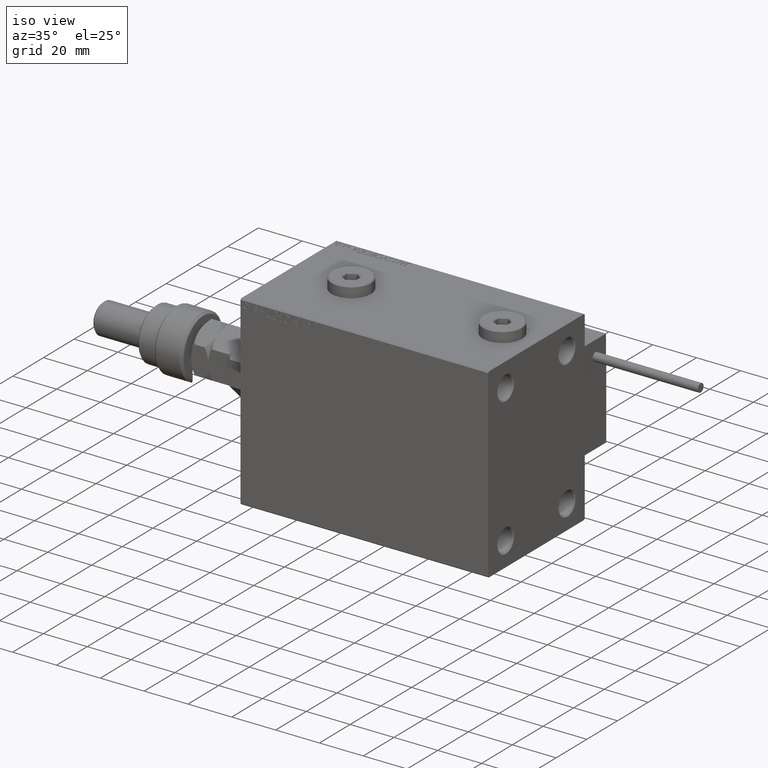
[diagram: clean part render]
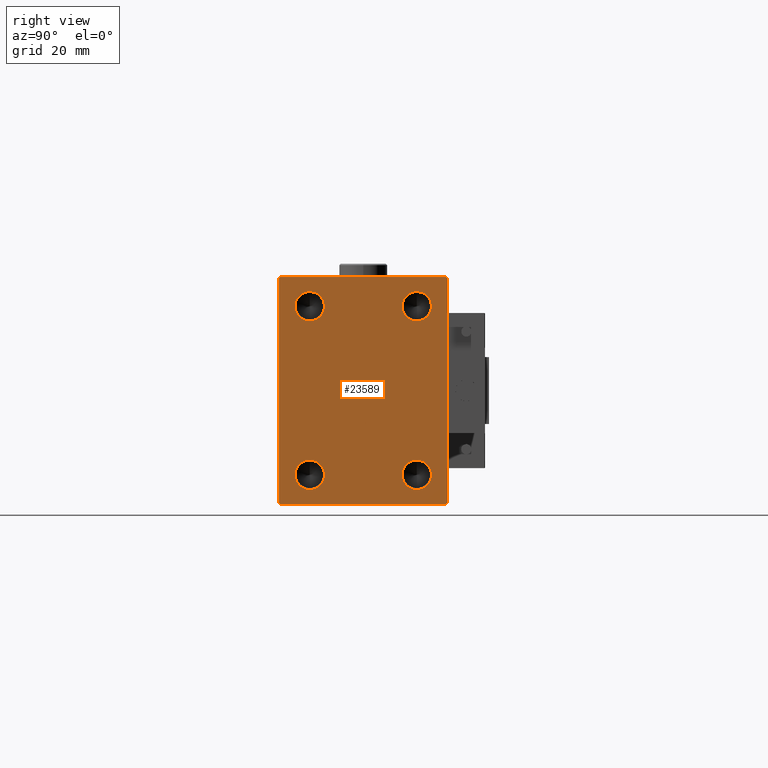
[diagram: tour spotlight — one face highlighted and labeled with its STEP entity id]
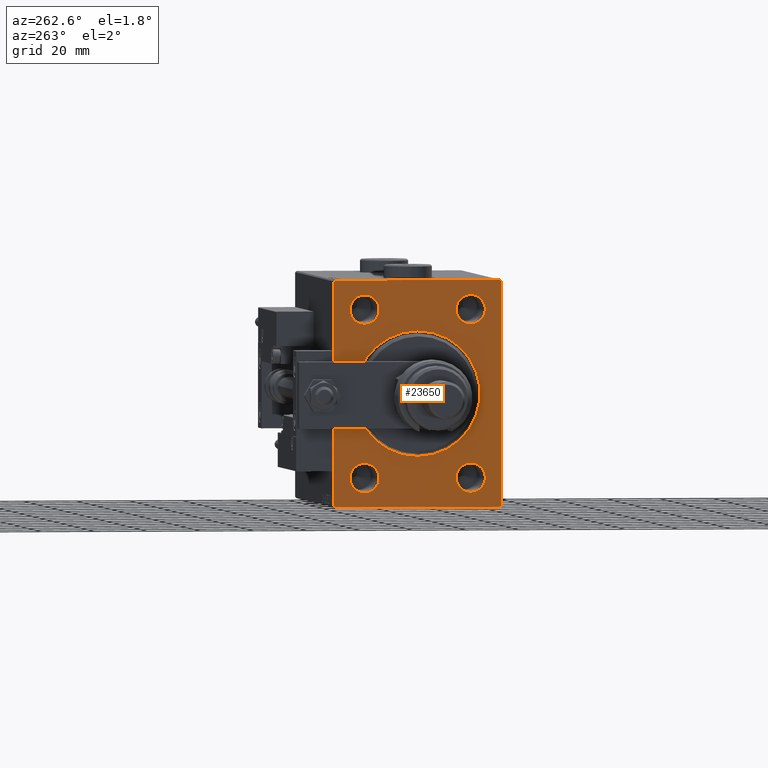
[diagram: tour spotlight — one face highlighted and labeled with its STEP entity id]
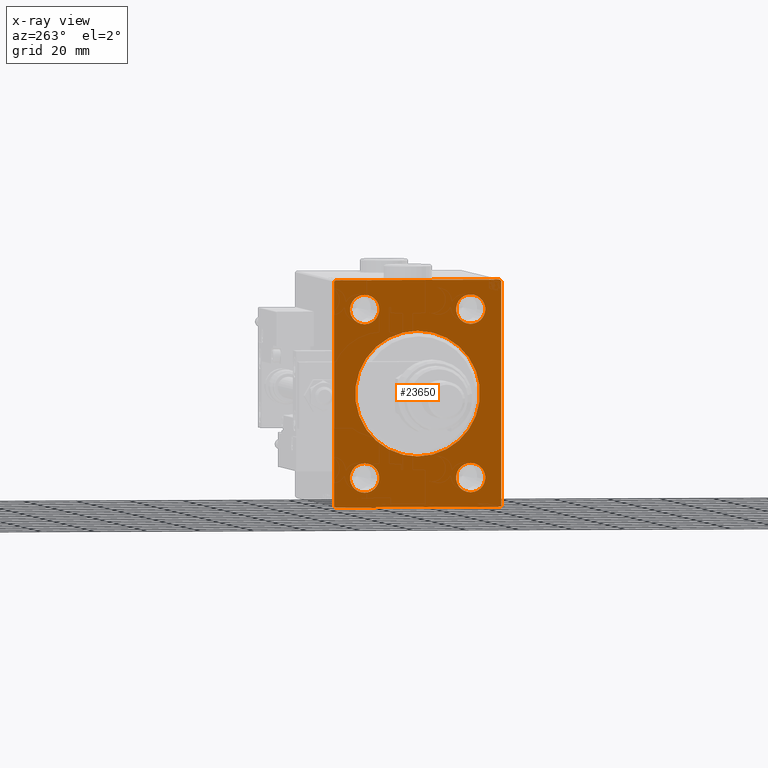
[diagram: x-ray of the same camera — body ghosted, this tour face saturated]
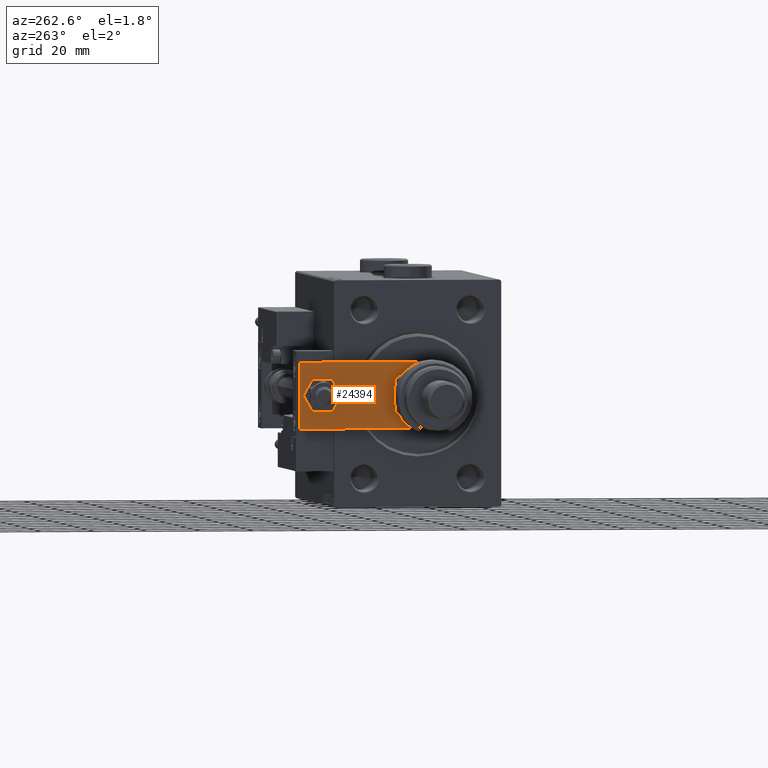
[diagram: tour spotlight — one face highlighted and labeled with its STEP entity id]
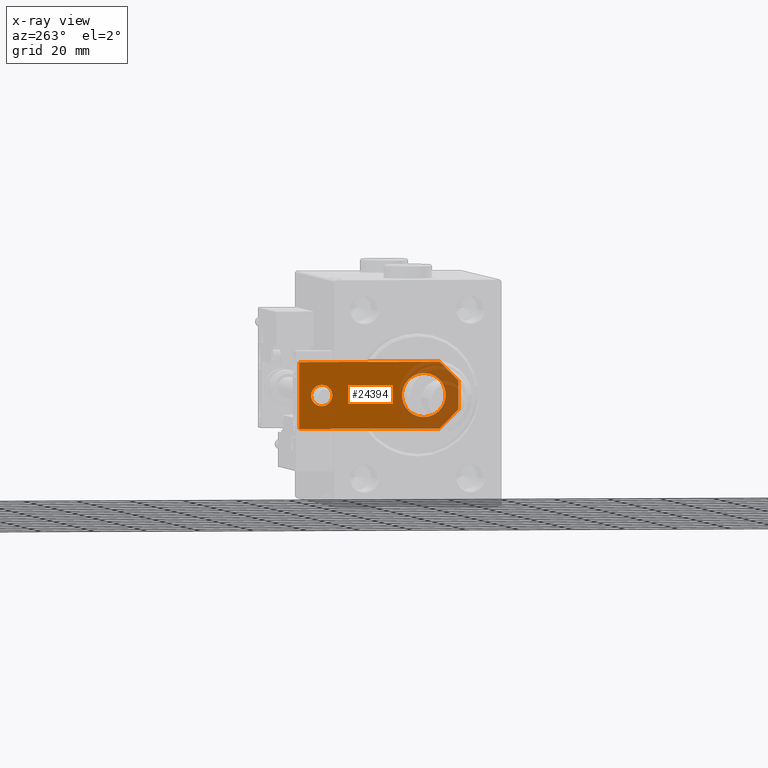
[diagram: x-ray of the same camera — body ghosted, this tour face saturated]
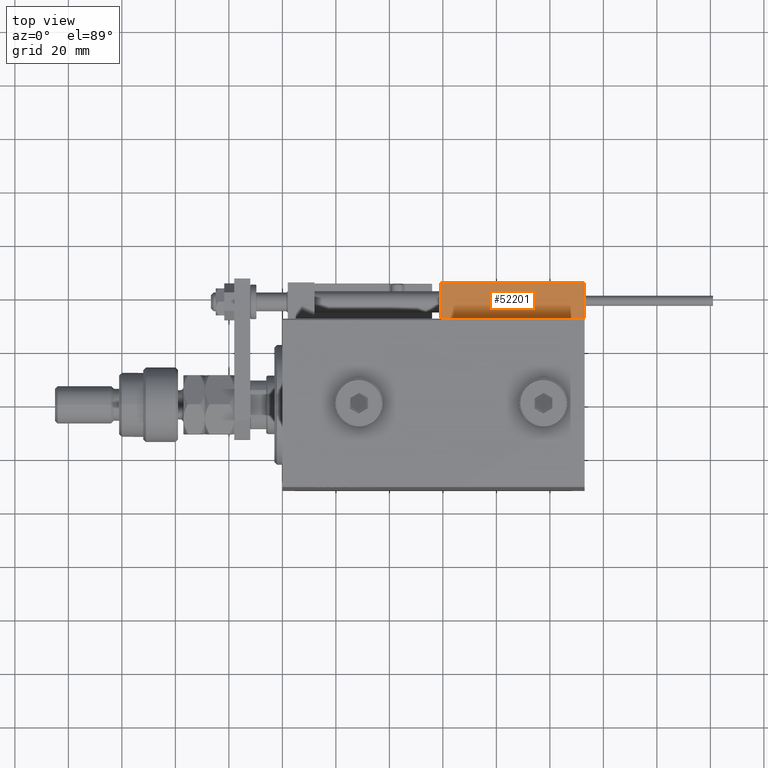
[diagram: tour spotlight — one face highlighted and labeled with its STEP entity id]
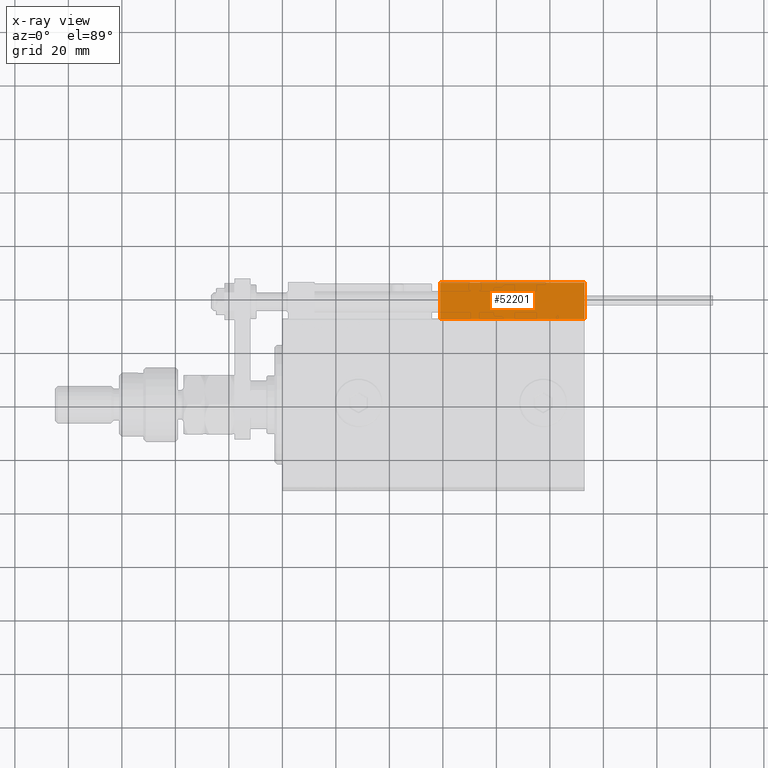
[diagram: x-ray of the same camera — body ghosted, this tour face saturated]
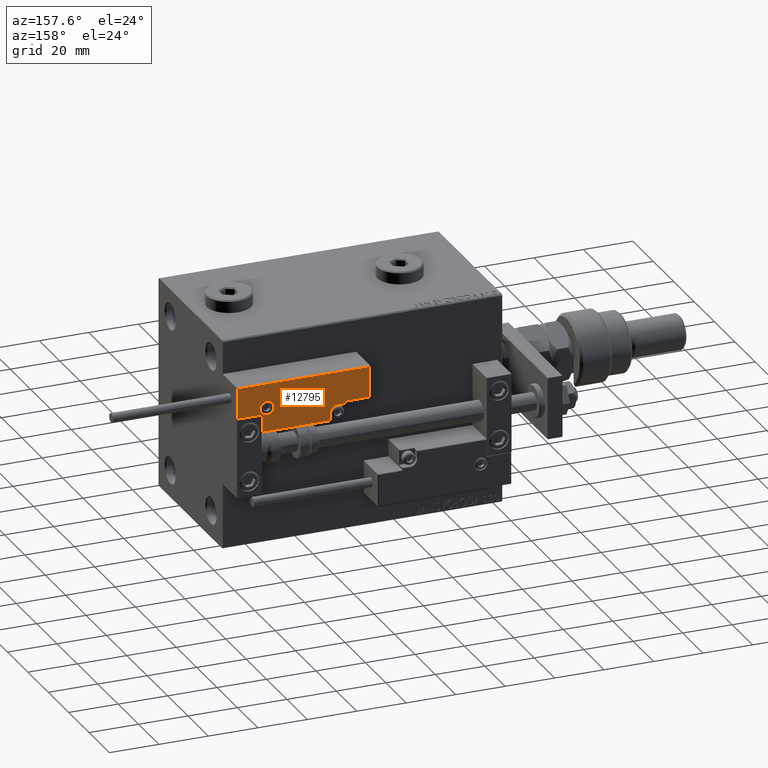
[diagram: tour spotlight — one face highlighted and labeled with its STEP entity id]
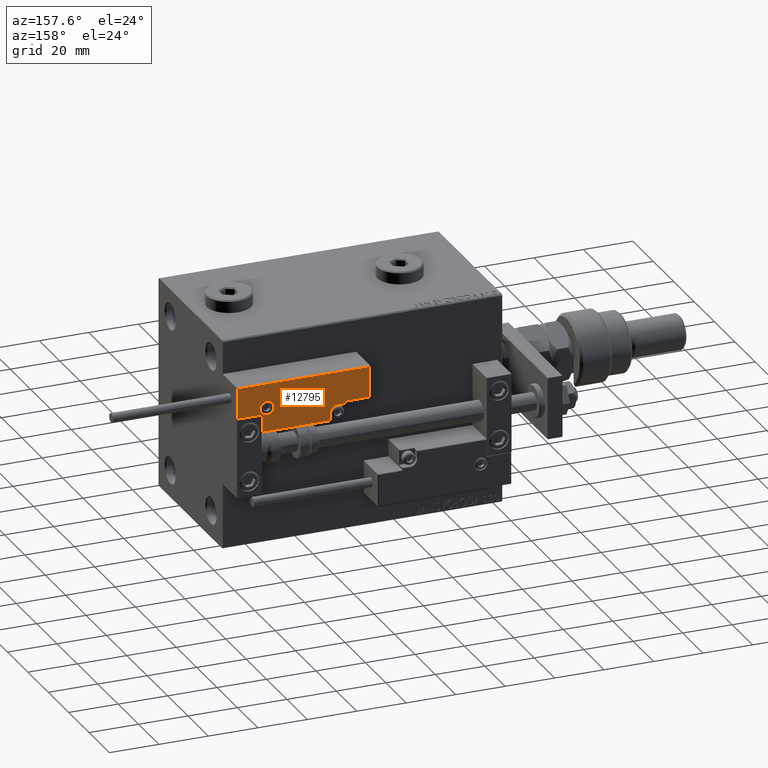
[diagram: tour spotlight — one face highlighted and labeled with its STEP entity id]
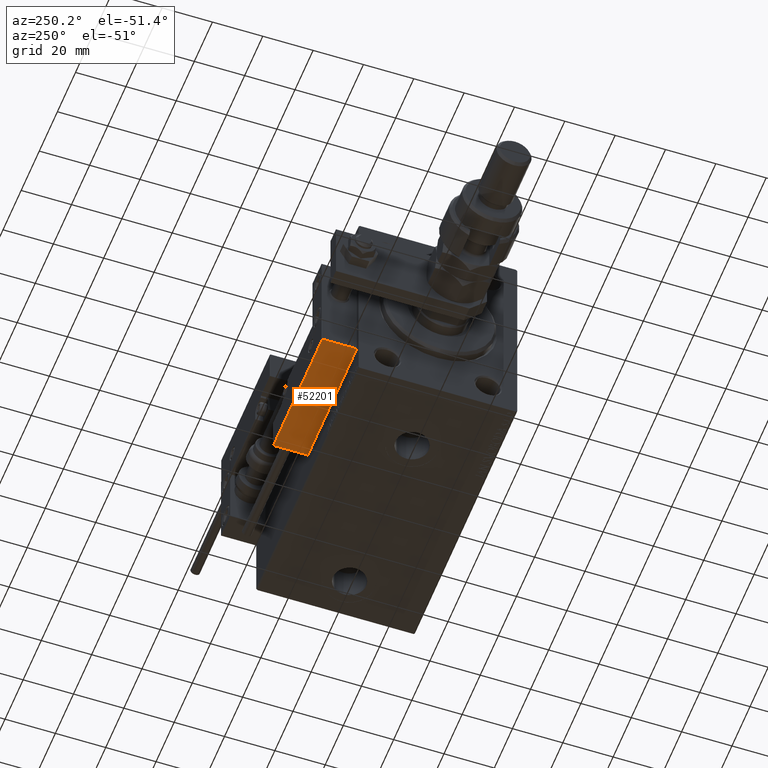
[diagram: tour spotlight — one face highlighted and labeled with its STEP entity id]
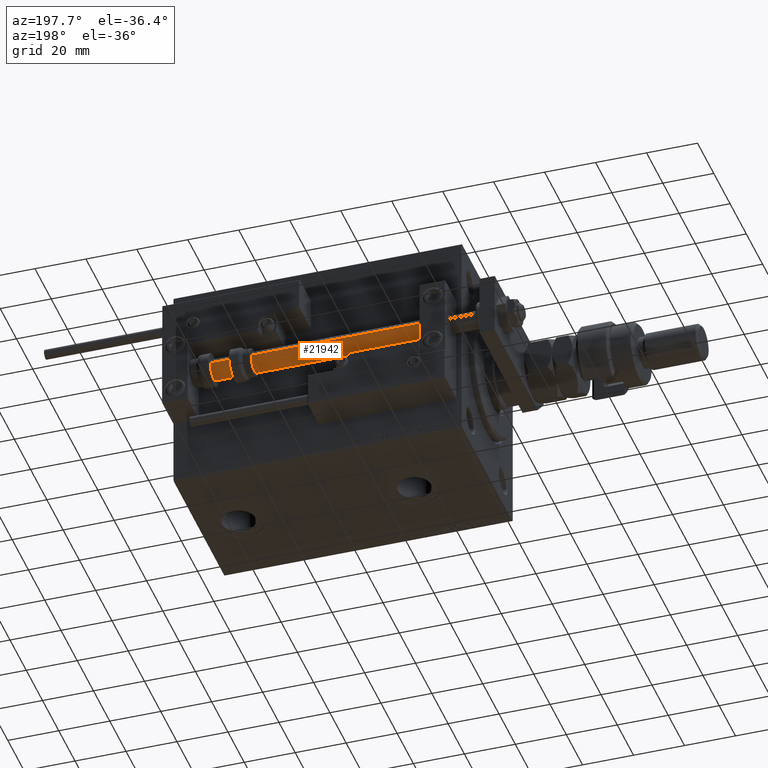
[diagram: tour spotlight — one face highlighted and labeled with its STEP entity id]
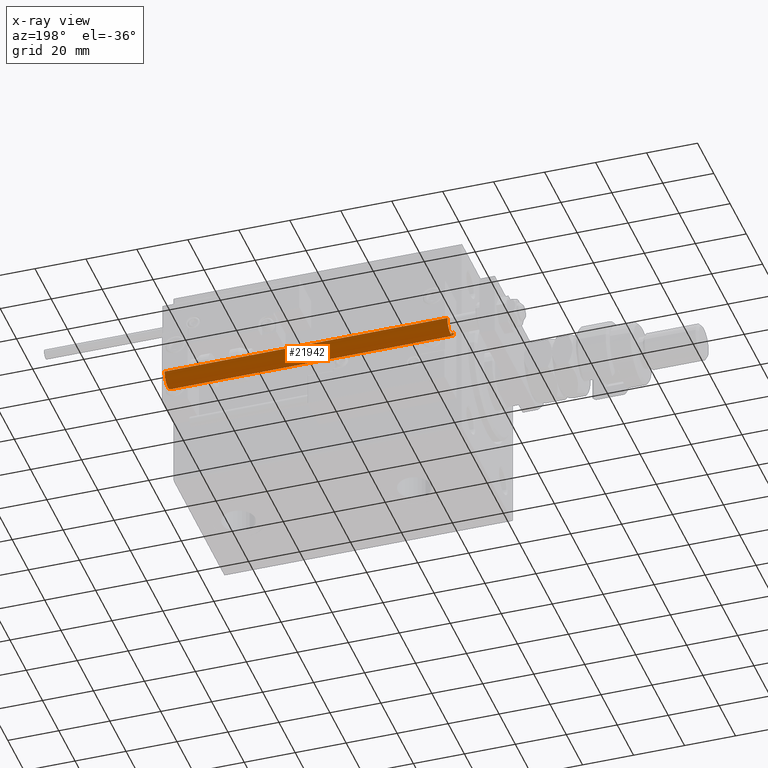
[diagram: x-ray of the same camera — body ghosted, this tour face saturated]
A machine part: a face-by-face anatomy tour. The part has 1457 B-rep faces; the first image is the clean iso view, then the 8 largest visible faces are spotlighted one at a time (largest first), each with its STEP entity span.

Face 1 — right view, entity #23589. In plain terms, the highlighted planar face has unit normal (1, 0, 0).
Definition (entity closure, byte-faithful):
#62 = DIRECTION ( 'NONE',  ( 0.000000000000000000, 0.000000000000000000, -1.000000000000000000 ) ) ;
#140 = VERTEX_POINT ( 'NONE', #4657 ) ;
#411 = ORIENTED_EDGE ( 'NONE', *, *, #36967, .F. ) ;
#1119 = VERTEX_POINT ( 'NONE', #33712 ) ;
#1532 = EDGE_LOOP ( 'NONE', ( #19483, #23134 ) ) ;
#2009 = AXIS2_PLACEMENT_3D ( 'NONE', #13245, #43169, #62 ) ;
#2171 = CARTESIAN_POINT ( 'NONE',  ( 113.0000000000000000, 31.50000000000000000, 42.00000000000002132 ) ) ;
#2490 = DIRECTION ( 'NONE',  ( 1.000000000000000000, -0.000000000000000000, -0.000000000000000000 ) ) ;
#2648 = EDGE_LOOP ( 'NONE', ( #46381, #24793 ) ) ;
#3000 = DIRECTION ( 'NONE',  ( 0.000000000000000000, 0.000000000000000000, -1.000000000000000000 ) ) ;
#3566 = AXIS2_PLACEMENT_3D ( 'NONE', #4749, #5316, #21822 ) ;
#3605 = ORIENTED_EDGE ( 'NONE', *, *, #42294, .T. ) ;
#4119 = FACE_BOUND ( 'NONE', #2648, .T. ) ;
#4648 = DIRECTION ( 'NONE',  ( 1.000000000000000000, -0.000000000000000000, -0.000000000000000000 ) ) ;
#4657 = CARTESIAN_POINT ( 'NONE',  ( 113.0000000000000000, -31.00000000000002842, -42.50000000000000711 ) ) ;
#4749 = CARTESIAN_POINT ( 'NONE',  ( 113.0000000000000000, -20.00000000000000355, 31.50000000000000000 ) ) ;
#4805 = LINE ( 'NONE', #25229, #42407 ) ;
#4956 = FACE_OUTER_BOUND ( 'NONE', #25252, .T. ) ;
#5316 = DIRECTION ( 'NONE',  ( 1.000000000000000000, -0.000000000000000000, -0.000000000000000000 ) ) ;
#5438 = DIRECTION ( 'NONE',  ( 1.000000000000000000, -0.000000000000000000, -0.000000000000000000 ) ) ;
#5483 = DIRECTION ( 'NONE',  ( 0.000000000000000000, 1.000000000000000000, 0.000000000000000000 ) ) ;
#6877 = VECTOR ( 'NONE', #45168, 1000.000000000000000 ) ;
#7008 = VERTEX_POINT ( 'NONE', #2171 ) ;
#7385 = ORIENTED_EDGE ( 'NONE', *, *, #31872, .T. ) ;
#7399 = ORIENTED_EDGE ( 'NONE', *, *, #12360, .F. ) ;
#7544 = EDGE_CURVE ( 'NONE', #55038, #1119, #26605, .T. ) ;
#8588 = DIRECTION ( 'NONE',  ( 0.000000000000000000, 0.000000000000000000, -1.000000000000000000 ) ) ;
#9714 = VERTEX_POINT ( 'NONE', #31030 ) ;
#9960 = CIRCLE ( 'NONE', #52024, 5.499999999999963585 ) ;
#10561 = LINE ( 'NONE', #14767, #33744 ) ;
#12360 = EDGE_CURVE ( 'NONE', #9714, #22994, #44301, .T. ) ;
#12561 = CARTESIAN_POINT ( 'NONE',  ( 113.0000000000000000, 31.50000000000000000, 42.49999999999999289 ) ) ;
#12946 = CARTESIAN_POINT ( 'NONE',  ( 113.0000000000000000, -20.00000000000000355, 36.99999999999996447 ) ) ;
#13245 = CARTESIAN_POINT ( 'NONE',  ( 113.0000000000000000, 19.99999999999999645, -31.50000000000000000 ) ) ;
#14155 = VECTOR ( 'NONE', #5483, 1000.000000000000000 ) ;
#14220 = VERTEX_POINT ( 'NONE', #17034 ) ;
#14693 = CARTESIAN_POINT ( 'NONE',  ( 113.0000000000000000, 31.50000000000001421, -42.50000000000000711 ) ) ;
#14767 = CARTESIAN_POINT ( 'NONE',  ( 113.0000000000000000, 36.75000000000002842, -36.75000000000002842 ) ) ;
#15196 = DIRECTION ( 'NONE',  ( -0.000000000000000000, -0.7071067811865474617, 0.7071067811865474617 ) ) ;
#15537 = VECTOR ( 'NONE', #53139, 1000.000000000000000 ) ;
#16332 = ORIENTED_EDGE ( 'NONE', *, *, #31252, .T. ) ;
#16424 = FACE_BOUND ( 'NONE', #43553, .T. ) ;
#17034 = CARTESIAN_POINT ( 'NONE',  ( 113.0000000000000000, 19.99999999999999645, 26.00000000000003197 ) ) ;
#17449 = CARTESIAN_POINT ( 'NONE',  ( 113.0000000000000000, 19.99999999999999645, -31.50000000000000000 ) ) ;
#18138 = LINE ( 'NONE', #44446, #15537 ) ;
#18248 = EDGE_CURVE ( 'NONE', #14220, #24048, #41838, .T. ) ;
#18563 = VECTOR ( 'NONE', #40022, 1000.000000000000114 ) ;
#19483 = ORIENTED_EDGE ( 'NONE', *, *, #7544, .F. ) ;
#20191 = ORIENTED_EDGE ( 'NONE', *, *, #27813, .F. ) ;
#20310 = ORIENTED_EDGE ( 'NONE', *, *, #24264, .F. ) ;
#20364 = EDGE_CURVE ( 'NONE', #52164, #36754, #54022, .T. ) ;
#20864 = EDGE_CURVE ( 'NONE', #140, #32556, #49421, .T. ) ;
#21032 = AXIS2_PLACEMENT_3D ( 'NONE', #52356, #27675, #44196 ) ;
#21194 = FACE_BOUND ( 'NONE', #54896, .T. ) ;
#21584 = VECTOR ( 'NONE', #15196, 1000.000000000000114 ) ;
#21599 = CARTESIAN_POINT ( 'NONE',  ( 113.0000000000000000, -20.00000000000000355, -26.00000000000003197 ) ) ;
#21660 = DIRECTION ( 'NONE',  ( 1.000000000000000000, -0.000000000000000000, -0.000000000000000000 ) ) ;
#21822 = DIRECTION ( 'NONE',  ( 0.000000000000000000, 0.000000000000000000, -1.000000000000000000 ) ) ;
#22954 = CARTESIAN_POINT ( 'NONE',  ( 113.0000000000000000, -36.75000000000001421, 36.75000000000001421 ) ) ;
#22994 = VERTEX_POINT ( 'NONE', #21599 ) ;
#23134 = ORIENTED_EDGE ( 'NONE', *, *, #30108, .F. ) ;
#23449 = ORIENTED_EDGE ( 'NONE', *, *, #40508, .T. ) ;
#23589 = ADVANCED_FACE ( 'NONE', ( #4119, #16424, #21194, #55358, #4956 ), #46941, .T. ) ;
#23727 = ORIENTED_EDGE ( 'NONE', *, *, #20864, .T. ) ;
#24006 = CARTESIAN_POINT ( 'NONE',  ( 113.0000000000000000, 19.99999999999999645, 31.50000000000000000 ) ) ;
#24048 = VERTEX_POINT ( 'NONE', #50398 ) ;
#24082 = VERTEX_POINT ( 'NONE', #37767 ) ;
#24264 = EDGE_CURVE ( 'NONE', #24082, #53587, #52751, .T. ) ;
#24793 = ORIENTED_EDGE ( 'NONE', *, *, #18248, .F. ) ;
#25229 = CARTESIAN_POINT ( 'NONE',  ( 113.0000000000000000, -31.50000000000000000, 42.49999999999998579 ) ) ;
#25252 = EDGE_LOOP ( 'NONE', ( #7385, #49416, #3605, #23449, #23727, #40363, #51882, #16332 ) ) ;
#25650 = CARTESIAN_POINT ( 'NONE',  ( 113.0000000000000000, 0.000000000000000000, 0.000000000000000000 ) ) ;
#26075 = AXIS2_PLACEMENT_3D ( 'NONE', #47198, #4648, #46910 ) ;
#26213 = DIRECTION ( 'NONE',  ( 1.000000000000000000, 0.000000000000000000, 0.000000000000000000 ) ) ;
#26605 = CIRCLE ( 'NONE', #29261, 5.499999999999963585 ) ;
#27675 = DIRECTION ( 'NONE',  ( 1.000000000000000000, -0.000000000000000000, -0.000000000000000000 ) ) ;
#27813 = EDGE_CURVE ( 'NONE', #53587, #24082, #9960, .T. ) ;
#28069 = CIRCLE ( 'NONE', #54034, 5.499999999999963585 ) ;
#28459 = CARTESIAN_POINT ( 'NONE',  ( 113.0000000000000000, -31.50000000000000000, 42.00000000000001421 ) ) ;
#29261 = AXIS2_PLACEMENT_3D ( 'NONE', #17449, #21660, #42360 ) ;
#30108 = EDGE_CURVE ( 'NONE', #1119, #55038, #54765, .T. ) ;
#30454 = CARTESIAN_POINT ( 'NONE',  ( 113.0000000000000000, 31.00000000000002842, 42.49999999999999289 ) ) ;
#30896 = DIRECTION ( 'NONE',  ( 0.000000000000000000, 0.000000000000000000, -1.000000000000000000 ) ) ;
#31030 = CARTESIAN_POINT ( 'NONE',  ( 113.0000000000000000, -20.00000000000000355, -36.99999999999996447 ) ) ;
#31252 = EDGE_CURVE ( 'NONE', #7008, #40569, #36449, .T. ) ;
#31872 = EDGE_CURVE ( 'NONE', #40569, #52164, #34086, .T. ) ;
#32205 = VERTEX_POINT ( 'NONE', #53032 ) ;
#32556 = VERTEX_POINT ( 'NONE', #33299 ) ;
#33223 = VECTOR ( 'NONE', #33821, 1000.000000000000000 ) ;
#33299 = CARTESIAN_POINT ( 'NONE',  ( 113.0000000000000000, 31.00000000000004263, -42.50000000000000711 ) ) ;
#33712 = CARTESIAN_POINT ( 'NONE',  ( 113.0000000000000000, 19.99999999999999645, -36.99999999999996447 ) ) ;
#33744 = VECTOR ( 'NONE', #48925, 1000.000000000000114 ) ;
#33821 = DIRECTION ( 'NONE',  ( 0.000000000000000000, -1.000000000000000000, -1.101411730778925171E-16 ) ) ;
#34086 = LINE ( 'NONE', #12561, #33223 ) ;
#36449 = LINE ( 'NONE', #53556, #21584 ) ;
#36754 = VERTEX_POINT ( 'NONE', #28459 ) ;
#36967 = EDGE_CURVE ( 'NONE', #22994, #9714, #45743, .T. ) ;
#37767 = CARTESIAN_POINT ( 'NONE',  ( 113.0000000000000000, -20.00000000000000355, 26.00000000000003197 ) ) ;
#40022 = DIRECTION ( 'NONE',  ( 0.000000000000000000, -0.7071067811865474617, -0.7071067811865474617 ) ) ;
#40363 = ORIENTED_EDGE ( 'NONE', *, *, #51894, .T. ) ;
#40508 = EDGE_CURVE ( 'NONE', #32205, #140, #18138, .T. ) ;
#40569 = VERTEX_POINT ( 'NONE', #30454 ) ;
#40827 = CARTESIAN_POINT ( 'NONE',  ( 113.0000000000000000, 19.99999999999999645, 31.50000000000000000 ) ) ;
#41583 = EDGE_CURVE ( 'NONE', #24048, #14220, #28069, .T. ) ;
#41838 = CIRCLE ( 'NONE', #43666, 5.499999999999963585 ) ;
#42294 = EDGE_CURVE ( 'NONE', #36754, #32205, #4805, .T. ) ;
#42360 = DIRECTION ( 'NONE',  ( 0.000000000000000000, 0.000000000000000000, -1.000000000000000000 ) ) ;
#42407 = VECTOR ( 'NONE', #43137, 1000.000000000000000 ) ;
#43137 = DIRECTION ( 'NONE',  ( 0.000000000000000000, 0.000000000000000000, -1.000000000000000000 ) ) ;
#43169 = DIRECTION ( 'NONE',  ( 1.000000000000000000, -0.000000000000000000, -0.000000000000000000 ) ) ;
#43241 = VERTEX_POINT ( 'NONE', #47370 ) ;
#43553 = EDGE_LOOP ( 'NONE', ( #20191, #20310 ) ) ;
#43666 = AXIS2_PLACEMENT_3D ( 'NONE', #40827, #2490, #44761 ) ;
#44196 = DIRECTION ( 'NONE',  ( 0.000000000000000000, 0.000000000000000000, -1.000000000000000000 ) ) ;
#44301 = CIRCLE ( 'NONE', #21032, 5.499999999999963585 ) ;
#44446 = CARTESIAN_POINT ( 'NONE',  ( 113.0000000000000000, -36.75000000000023448, -36.74999999999972999 ) ) ;
#44761 = DIRECTION ( 'NONE',  ( 0.000000000000000000, 0.000000000000000000, -1.000000000000000000 ) ) ;
#45168 = DIRECTION ( 'NONE',  ( 0.000000000000000000, -1.632680918566406547E-16, 1.000000000000000000 ) ) ;
#45550 = DIRECTION ( 'NONE',  ( 1.000000000000000000, -0.000000000000000000, -0.000000000000000000 ) ) ;
#45743 = CIRCLE ( 'NONE', #26075, 5.499999999999963585 ) ;
#46381 = ORIENTED_EDGE ( 'NONE', *, *, #41583, .F. ) ;
#46910 = DIRECTION ( 'NONE',  ( 0.000000000000000000, 0.000000000000000000, -1.000000000000000000 ) ) ;
#46941 = PLANE ( 'NONE',  #47336 ) ;
#47198 = CARTESIAN_POINT ( 'NONE',  ( 113.0000000000000000, -20.00000000000000355, -31.50000000000000000 ) ) ;
#47336 = AXIS2_PLACEMENT_3D ( 'NONE', #25650, #26213, #8588 ) ;
#47370 = CARTESIAN_POINT ( 'NONE',  ( 113.0000000000000000, 31.50000000000001421, -42.00000000000003553 ) ) ;
#47548 = EDGE_CURVE ( 'NONE', #43241, #7008, #53049, .T. ) ;
#48868 = CARTESIAN_POINT ( 'NONE',  ( 113.0000000000000000, -31.50000000000000000, -42.50000000000000711 ) ) ;
#48925 = DIRECTION ( 'NONE',  ( -0.000000000000000000, 0.7071067811865474617, 0.7071067811865474617 ) ) ;
#49416 = ORIENTED_EDGE ( 'NONE', *, *, #20364, .T. ) ;
#49421 = LINE ( 'NONE', #48868, #14155 ) ;
#50398 = CARTESIAN_POINT ( 'NONE',  ( 113.0000000000000000, 19.99999999999999645, 36.99999999999996447 ) ) ;
#51468 = CARTESIAN_POINT ( 'NONE',  ( 113.0000000000000000, 19.99999999999999645, -26.00000000000003197 ) ) ;
#51882 = ORIENTED_EDGE ( 'NONE', *, *, #47548, .T. ) ;
#51894 = EDGE_CURVE ( 'NONE', #32556, #43241, #10561, .T. ) ;
#52024 = AXIS2_PLACEMENT_3D ( 'NONE', #52202, #5438, #30896 ) ;
#52164 = VERTEX_POINT ( 'NONE', #53340 ) ;
#52202 = CARTESIAN_POINT ( 'NONE',  ( 113.0000000000000000, -20.00000000000000355, 31.50000000000000000 ) ) ;
#52356 = CARTESIAN_POINT ( 'NONE',  ( 113.0000000000000000, -20.00000000000000355, -31.50000000000000000 ) ) ;
#52751 = CIRCLE ( 'NONE', #3566, 5.499999999999963585 ) ;
#53032 = CARTESIAN_POINT ( 'NONE',  ( 113.0000000000000000, -31.50000000000000000, -42.00000000000002842 ) ) ;
#53049 = LINE ( 'NONE', #14693, #6877 ) ;
#53139 = DIRECTION ( 'NONE',  ( -0.000000000000000000, 0.7071067811865426878, -0.7071067811865524577 ) ) ;
#53340 = CARTESIAN_POINT ( 'NONE',  ( 113.0000000000000000, -31.00000000000002842, 42.49999999999998579 ) ) ;
#53556 = CARTESIAN_POINT ( 'NONE',  ( 113.0000000000000000, 36.75000000000001421, 36.75000000000001421 ) ) ;
#53587 = VERTEX_POINT ( 'NONE', #12946 ) ;
#54022 = LINE ( 'NONE', #22954, #18563 ) ;
#54034 = AXIS2_PLACEMENT_3D ( 'NONE', #24006, #45550, #3000 ) ;
#54765 = CIRCLE ( 'NONE', #2009, 5.499999999999963585 ) ;
#54896 = EDGE_LOOP ( 'NONE', ( #411, #7399 ) ) ;
#55038 = VERTEX_POINT ( 'NONE', #51468 ) ;
#55358 = FACE_BOUND ( 'NONE', #1532, .T. ) ;

Face 2 — auxiliary view, entity #23650. An x-ray twin of the same camera follows (body ghosted, this face saturated) — the face is partly hidden behind the body. In plain terms, the highlighted planar face has unit normal (1, 0, 0).
Definition (entity closure, byte-faithful):
#310 = ORIENTED_EDGE ( 'NONE', *, *, #22270, .F. ) ;
#351 = CARTESIAN_POINT ( 'NONE',  ( 0.000000000000000000, -20.00000000000000355, -31.50000000000000000 ) ) ;
#2244 = DIRECTION ( 'NONE',  ( -0.000000000000000000, 0.7071067811865474617, -0.7071067811865474617 ) ) ;
#2387 = VECTOR ( 'NONE', #31526, 1000.000000000000114 ) ;
#2417 = DIRECTION ( 'NONE',  ( 1.000000000000000000, 0.000000000000000000, 0.000000000000000000 ) ) ;
#3186 = CIRCLE ( 'NONE', #37267, 23.50000000000003197 ) ;
#4622 = CARTESIAN_POINT ( 'NONE',  ( 0.000000000000000000, 31.50000000000000000, 42.49999999999999289 ) ) ;
#4833 = AXIS2_PLACEMENT_3D ( 'NONE', #12847, #29904, #46997 ) ;
#4942 = VERTEX_POINT ( 'NONE', #30075 ) ;
#5304 = AXIS2_PLACEMENT_3D ( 'NONE', #39096, #43577, #9976 ) ;
#5333 = ORIENTED_EDGE ( 'NONE', *, *, #19570, .T. ) ;
#5437 = DIRECTION ( 'NONE',  ( 0.000000000000000000, 0.000000000000000000, -1.000000000000000000 ) ) ;
#5990 = VECTOR ( 'NONE', #23927, 1000.000000000000114 ) ;
#6070 = FACE_BOUND ( 'NONE', #45929, .T. ) ;
#6697 = ORIENTED_EDGE ( 'NONE', *, *, #29324, .F. ) ;
#6759 = VERTEX_POINT ( 'NONE', #49911 ) ;
#7257 = ORIENTED_EDGE ( 'NONE', *, *, #44383, .T. ) ;
#8011 = VERTEX_POINT ( 'NONE', #26341 ) ;
#8200 = LINE ( 'NONE', #16317, #40734 ) ;
#8448 = ORIENTED_EDGE ( 'NONE', *, *, #20804, .T. ) ;
#8922 = VECTOR ( 'NONE', #8948, 1000.000000000000000 ) ;
#8948 = DIRECTION ( 'NONE',  ( -0.000000000000000000, -0.7071067811865426878, 0.7071067811865524577 ) ) ;
#9119 = DIRECTION ( 'NONE',  ( 1.000000000000000000, 0.000000000000000000, 0.000000000000000000 ) ) ;
#9153 = VERTEX_POINT ( 'NONE', #26471 ) ;
#9239 = EDGE_CURVE ( 'NONE', #49913, #17657, #32318, .T. ) ;
#9690 = CARTESIAN_POINT ( 'NONE',  ( 0.000000000000000000, 0.000000000000000000, 23.50000000000003197 ) ) ;
#9952 = EDGE_LOOP ( 'NONE', ( #44266, #28320 ) ) ;
#9976 = DIRECTION ( 'NONE',  ( 0.000000000000000000, 0.000000000000000000, -1.000000000000000000 ) ) ;
#10094 = CARTESIAN_POINT ( 'NONE',  ( 0.000000000000000000, -20.00000000000000355, -36.99999999999996447 ) ) ;
#10479 = CARTESIAN_POINT ( 'NONE',  ( 0.000000000000000000, -31.50000000000000000, 42.49999999999998579 ) ) ;
#10653 = CARTESIAN_POINT ( 'NONE',  ( 0.000000000000000000, 31.00000000000002842, 42.49999999999999289 ) ) ;
#10705 = VERTEX_POINT ( 'NONE', #20767 ) ;
#11001 = LINE ( 'NONE', #35906, #55330 ) ;
#12288 = CIRCLE ( 'NONE', #16750, 5.499999999999963585 ) ;
#12747 = AXIS2_PLACEMENT_3D ( 'NONE', #21637, #36445, #53552 ) ;
#12847 = CARTESIAN_POINT ( 'NONE',  ( 0.000000000000000000, -20.00000000000000355, 31.50000000000000000 ) ) ;
#13125 = CARTESIAN_POINT ( 'NONE',  ( 0.000000000000000000, 19.99999999999999645, -36.99999999999996447 ) ) ;
#13252 = CARTESIAN_POINT ( 'NONE',  ( 0.000000000000000000, 31.50000000000000000, 42.00000000000002132 ) ) ;
#13604 = VERTEX_POINT ( 'NONE', #18681 ) ;
#14178 = EDGE_CURVE ( 'NONE', #32798, #35242, #27711, .T. ) ;
#14919 = EDGE_LOOP ( 'NONE', ( #52528, #50484 ) ) ;
#16317 = CARTESIAN_POINT ( 'NONE',  ( 0.000000000000000000, 31.50000000000001421, -42.50000000000000711 ) ) ;
#16334 = ORIENTED_EDGE ( 'NONE', *, *, #36043, .T. ) ;
#16750 = AXIS2_PLACEMENT_3D ( 'NONE', #49752, #32924, #39332 ) ;
#17127 = AXIS2_PLACEMENT_3D ( 'NONE', #32790, #49899, #28592 ) ;
#17330 = CARTESIAN_POINT ( 'NONE',  ( 0.000000000000000000, -31.00000000000002842, -42.50000000000000711 ) ) ;
#17627 = ORIENTED_EDGE ( 'NONE', *, *, #54456, .F. ) ;
#17657 = VERTEX_POINT ( 'NONE', #23609 ) ;
#18094 = FACE_OUTER_BOUND ( 'NONE', #20291, .T. ) ;
#18219 = CARTESIAN_POINT ( 'NONE',  ( 0.000000000000000000, -31.00000000000002842, -42.50000000000000711 ) ) ;
#18603 = AXIS2_PLACEMENT_3D ( 'NONE', #47478, #9119, #26185 ) ;
#18655 = FACE_BOUND ( 'NONE', #14919, .T. ) ;
#18681 = CARTESIAN_POINT ( 'NONE',  ( 0.000000000000000000, -31.50000000000000000, -42.00000000000002842 ) ) ;
#19256 = AXIS2_PLACEMENT_3D ( 'NONE', #41255, #32866, #36236 ) ;
#19570 = EDGE_CURVE ( 'NONE', #20565, #4942, #12288, .T. ) ;
#20091 = ORIENTED_EDGE ( 'NONE', *, *, #47239, .T. ) ;
#20269 = CARTESIAN_POINT ( 'NONE',  ( 0.000000000000000000, 31.50000000000001421, -42.00000000000003553 ) ) ;
#20291 = EDGE_LOOP ( 'NONE', ( #6697, #20091, #17627, #53455, #40283, #23250, #310, #49322 ) ) ;
#20412 = CARTESIAN_POINT ( 'NONE',  ( 0.000000000000000000, -31.00000000000002842, 42.49999999999998579 ) ) ;
#20565 = VERTEX_POINT ( 'NONE', #39136 ) ;
#20767 = CARTESIAN_POINT ( 'NONE',  ( 0.000000000000000000, -31.50000000000000000, 42.00000000000001421 ) ) ;
#20804 = EDGE_CURVE ( 'NONE', #44909, #9153, #30211, .T. ) ;
#21637 = CARTESIAN_POINT ( 'NONE',  ( 0.000000000000000000, 19.99999999999999645, 31.50000000000000000 ) ) ;
#21697 = DIRECTION ( 'NONE',  ( 0.000000000000000000, -1.000000000000000000, -1.101411730778925171E-16 ) ) ;
#22270 = EDGE_CURVE ( 'NONE', #22480, #17657, #11001, .T. ) ;
#22385 = LINE ( 'NONE', #17330, #8922 ) ;
#22480 = VERTEX_POINT ( 'NONE', #18219 ) ;
#23050 = CARTESIAN_POINT ( 'NONE',  ( 0.000000000000000000, 0.000000000000000000, 0.000000000000000000 ) ) ;
#23250 = ORIENTED_EDGE ( 'NONE', *, *, #9239, .T. ) ;
#23367 = CIRCLE ( 'NONE', #39590, 5.499999999999963585 ) ;
#23548 = EDGE_CURVE ( 'NONE', #40398, #8011, #38360, .T. ) ;
#23609 = CARTESIAN_POINT ( 'NONE',  ( 0.000000000000000000, 31.00000000000004263, -42.50000000000000711 ) ) ;
#23650 = ADVANCED_FACE ( 'NONE', ( #18655, #6070, #31512, #48069, #52279, #18094 ), #35448, .F. ) ;
#23927 = DIRECTION ( 'NONE',  ( 0.000000000000000000, -0.7071067811865474617, -0.7071067811865474617 ) ) ;
#24172 = EDGE_CURVE ( 'NONE', #22480, #13604, #22385, .T. ) ;
#24227 = CARTESIAN_POINT ( 'NONE',  ( 0.000000000000000000, -31.50000000000000000, 42.00000000000001421 ) ) ;
#24274 = CARTESIAN_POINT ( 'NONE',  ( 0.000000000000000000, 19.99999999999999645, -31.50000000000000000 ) ) ;
#26085 = CIRCLE ( 'NONE', #17127, 5.499999999999963585 ) ;
#26185 = DIRECTION ( 'NONE',  ( 0.000000000000000000, 0.000000000000000000, -1.000000000000000000 ) ) ;
#26341 = CARTESIAN_POINT ( 'NONE',  ( 0.000000000000000000, 19.99999999999999645, -26.00000000000003553 ) ) ;
#26471 = CARTESIAN_POINT ( 'NONE',  ( 0.000000000000000000, -20.00000000000000355, -26.00000000000003553 ) ) ;
#27538 = DIRECTION ( 'NONE',  ( 0.000000000000000000, 0.000000000000000000, -1.000000000000000000 ) ) ;
#27611 = CARTESIAN_POINT ( 'NONE',  ( 0.000000000000000000, 31.00000000000002842, 42.49999999999999289 ) ) ;
#27711 = LINE ( 'NONE', #10653, #28255 ) ;
#28255 = VECTOR ( 'NONE', #2244, 1000.000000000000114 ) ;
#28320 = ORIENTED_EDGE ( 'NONE', *, *, #23548, .T. ) ;
#28592 = DIRECTION ( 'NONE',  ( 0.000000000000000000, 0.000000000000000000, -1.000000000000000000 ) ) ;
#28747 = DIRECTION ( 'NONE',  ( 0.000000000000000000, 0.000000000000000000, -1.000000000000000000 ) ) ;
#29324 = EDGE_CURVE ( 'NONE', #10705, #13604, #52771, .T. ) ;
#29904 = DIRECTION ( 'NONE',  ( 1.000000000000000000, 0.000000000000000000, 0.000000000000000000 ) ) ;
#29928 = CARTESIAN_POINT ( 'NONE',  ( 0.000000000000000000, 19.99999999999999645, 36.99999999999996447 ) ) ;
#30075 = CARTESIAN_POINT ( 'NONE',  ( 0.000000000000000000, -20.00000000000000355, 26.00000000000003553 ) ) ;
#30211 = CIRCLE ( 'NONE', #18603, 5.499999999999963585 ) ;
#30319 = DIRECTION ( 'NONE',  ( 0.000000000000000000, 0.000000000000000000, -1.000000000000000000 ) ) ;
#31472 = EDGE_CURVE ( 'NONE', #8011, #40398, #26085, .T. ) ;
#31512 = FACE_BOUND ( 'NONE', #39346, .T. ) ;
#31526 = DIRECTION ( 'NONE',  ( -0.000000000000000000, 0.7071067811865474617, 0.7071067811865474617 ) ) ;
#31810 = VERTEX_POINT ( 'NONE', #42488 ) ;
#32038 = EDGE_LOOP ( 'NONE', ( #51812, #7257 ) ) ;
#32318 = LINE ( 'NONE', #45193, #5990 ) ;
#32790 = CARTESIAN_POINT ( 'NONE',  ( 0.000000000000000000, 19.99999999999999645, -31.50000000000000000 ) ) ;
#32798 = VERTEX_POINT ( 'NONE', #27611 ) ;
#32866 = DIRECTION ( 'NONE',  ( 1.000000000000000000, 0.000000000000000000, 0.000000000000000000 ) ) ;
#32924 = DIRECTION ( 'NONE',  ( 1.000000000000000000, 0.000000000000000000, 0.000000000000000000 ) ) ;
#33009 = AXIS2_PLACEMENT_3D ( 'NONE', #24274, #36886, #28747 ) ;
#33385 = DIRECTION ( 'NONE',  ( 0.000000000000000000, -1.632680918566406547E-16, 1.000000000000000000 ) ) ;
#34326 = EDGE_CURVE ( 'NONE', #53851, #31810, #42216, .T. ) ;
#35242 = VERTEX_POINT ( 'NONE', #13252 ) ;
#35448 = PLANE ( 'NONE',  #5304 ) ;
#35906 = CARTESIAN_POINT ( 'NONE',  ( 0.000000000000000000, -31.50000000000000000, -42.50000000000000711 ) ) ;
#36043 = EDGE_CURVE ( 'NONE', #9153, #44909, #23367, .T. ) ;
#36236 = DIRECTION ( 'NONE',  ( 0.000000000000000000, 0.000000000000000000, -1.000000000000000000 ) ) ;
#36445 = DIRECTION ( 'NONE',  ( 1.000000000000000000, 0.000000000000000000, 0.000000000000000000 ) ) ;
#36886 = DIRECTION ( 'NONE',  ( 1.000000000000000000, 0.000000000000000000, 0.000000000000000000 ) ) ;
#37063 = AXIS2_PLACEMENT_3D ( 'NONE', #23050, #43774, #5437 ) ;
#37267 = AXIS2_PLACEMENT_3D ( 'NONE', #40754, #2417, #49739 ) ;
#38360 = CIRCLE ( 'NONE', #33009, 5.499999999999963585 ) ;
#39096 = CARTESIAN_POINT ( 'NONE',  ( 0.000000000000000000, 0.000000000000000000, 0.000000000000000000 ) ) ;
#39136 = CARTESIAN_POINT ( 'NONE',  ( 0.000000000000000000, -20.00000000000000355, 36.99999999999996447 ) ) ;
#39278 = VERTEX_POINT ( 'NONE', #20412 ) ;
#39332 = DIRECTION ( 'NONE',  ( 0.000000000000000000, 0.000000000000000000, -1.000000000000000000 ) ) ;
#39346 = EDGE_LOOP ( 'NONE', ( #5333, #45944 ) ) ;
#39590 = AXIS2_PLACEMENT_3D ( 'NONE', #351, #51625, #30319 ) ;
#40283 = ORIENTED_EDGE ( 'NONE', *, *, #47651, .F. ) ;
#40398 = VERTEX_POINT ( 'NONE', #13125 ) ;
#40734 = VECTOR ( 'NONE', #33385, 1000.000000000000000 ) ;
#40754 = CARTESIAN_POINT ( 'NONE',  ( 0.000000000000000000, 0.000000000000000000, 0.000000000000000000 ) ) ;
#40914 = VERTEX_POINT ( 'NONE', #9690 ) ;
#41255 = CARTESIAN_POINT ( 'NONE',  ( 0.000000000000000000, 19.99999999999999645, 31.50000000000000000 ) ) ;
#41453 = EDGE_CURVE ( 'NONE', #4942, #20565, #49562, .T. ) ;
#41608 = CIRCLE ( 'NONE', #19256, 5.499999999999963585 ) ;
#41879 = VECTOR ( 'NONE', #21697, 1000.000000000000000 ) ;
#42116 = EDGE_CURVE ( 'NONE', #40914, #6759, #47797, .T. ) ;
#42216 = CIRCLE ( 'NONE', #12747, 5.499999999999963585 ) ;
#42488 = CARTESIAN_POINT ( 'NONE',  ( 0.000000000000000000, 19.99999999999999645, 26.00000000000003553 ) ) ;
#42955 = LINE ( 'NONE', #4622, #41879 ) ;
#43577 = DIRECTION ( 'NONE',  ( 1.000000000000000000, 0.000000000000000000, 0.000000000000000000 ) ) ;
#43774 = DIRECTION ( 'NONE',  ( 1.000000000000000000, 0.000000000000000000, 0.000000000000000000 ) ) ;
#44037 = DIRECTION ( 'NONE',  ( 0.000000000000000000, 1.000000000000000000, 0.000000000000000000 ) ) ;
#44266 = ORIENTED_EDGE ( 'NONE', *, *, #31472, .T. ) ;
#44383 = EDGE_CURVE ( 'NONE', #31810, #53851, #41608, .T. ) ;
#44880 = VECTOR ( 'NONE', #27538, 1000.000000000000000 ) ;
#44909 = VERTEX_POINT ( 'NONE', #10094 ) ;
#45193 = CARTESIAN_POINT ( 'NONE',  ( 0.000000000000000000, 31.50000000000001421, -42.00000000000003553 ) ) ;
#45513 = LINE ( 'NONE', #24227, #2387 ) ;
#45929 = EDGE_LOOP ( 'NONE', ( #16334, #8448 ) ) ;
#45944 = ORIENTED_EDGE ( 'NONE', *, *, #41453, .T. ) ;
#46997 = DIRECTION ( 'NONE',  ( 0.000000000000000000, 0.000000000000000000, -1.000000000000000000 ) ) ;
#47229 = EDGE_CURVE ( 'NONE', #6759, #40914, #3186, .T. ) ;
#47239 = EDGE_CURVE ( 'NONE', #10705, #39278, #45513, .T. ) ;
#47478 = CARTESIAN_POINT ( 'NONE',  ( 0.000000000000000000, -20.00000000000000355, -31.50000000000000000 ) ) ;
#47651 = EDGE_CURVE ( 'NONE', #49913, #35242, #8200, .T. ) ;
#47797 = CIRCLE ( 'NONE', #37063, 23.50000000000003197 ) ;
#48069 = FACE_BOUND ( 'NONE', #32038, .T. ) ;
#49322 = ORIENTED_EDGE ( 'NONE', *, *, #24172, .T. ) ;
#49562 = CIRCLE ( 'NONE', #4833, 5.499999999999963585 ) ;
#49739 = DIRECTION ( 'NONE',  ( 0.000000000000000000, 0.000000000000000000, -1.000000000000000000 ) ) ;
#49752 = CARTESIAN_POINT ( 'NONE',  ( 0.000000000000000000, -20.00000000000000355, 31.50000000000000000 ) ) ;
#49899 = DIRECTION ( 'NONE',  ( 1.000000000000000000, 0.000000000000000000, 0.000000000000000000 ) ) ;
#49911 = CARTESIAN_POINT ( 'NONE',  ( 0.000000000000000000, 2.877919977996283870E-15, -23.50000000000003197 ) ) ;
#49913 = VERTEX_POINT ( 'NONE', #20269 ) ;
#50484 = ORIENTED_EDGE ( 'NONE', *, *, #47229, .T. ) ;
#51625 = DIRECTION ( 'NONE',  ( 1.000000000000000000, 0.000000000000000000, 0.000000000000000000 ) ) ;
#51812 = ORIENTED_EDGE ( 'NONE', *, *, #34326, .T. ) ;
#52279 = FACE_BOUND ( 'NONE', #9952, .T. ) ;
#52528 = ORIENTED_EDGE ( 'NONE', *, *, #42116, .T. ) ;
#52771 = LINE ( 'NONE', #10479, #44880 ) ;
#53455 = ORIENTED_EDGE ( 'NONE', *, *, #14178, .T. ) ;
#53552 = DIRECTION ( 'NONE',  ( 0.000000000000000000, 0.000000000000000000, -1.000000000000000000 ) ) ;
#53851 = VERTEX_POINT ( 'NONE', #29928 ) ;
#54456 = EDGE_CURVE ( 'NONE', #32798, #39278, #42955, .T. ) ;
#55330 = VECTOR ( 'NONE', #44037, 1000.000000000000000 ) ;

Face 3 — auxiliary view, entity #24394. An x-ray twin of the same camera follows (body ghosted, this face saturated) — the face is partly hidden behind the body. In plain terms, the highlighted planar face has unit normal (-1, -0, 0).
Definition (entity closure, byte-faithful):
#105 = DIRECTION ( 'NONE',  ( 0.000000000000000000, 0.000000000000000000, 1.000000000000000000 ) ) ;
#173 = ORIENTED_EDGE ( 'NONE', *, *, #22987, .T. ) ;
#555 = LINE ( 'NONE', #9525, #13048 ) ;
#1267 = AXIS2_PLACEMENT_3D ( 'NONE', #28538, #15674, #38025 ) ;
#1345 = CIRCLE ( 'NONE', #14749, 4.000000000000000888 ) ;
#1659 = CARTESIAN_POINT ( 'NONE',  ( -12.49999999999999822, 60.00000000000000000, 6.000000000000000000 ) ) ;
#1825 = EDGE_CURVE ( 'NONE', #42374, #53650, #1345, .T. ) ;
#1938 = EDGE_LOOP ( 'NONE', ( #2271, #42667 ) ) ;
#2271 = ORIENTED_EDGE ( 'NONE', *, *, #1825, .F. ) ;
#2478 = CARTESIAN_POINT ( 'NONE',  ( 0.000000000000000000, 0.000000000000000000, 6.000000000000000000 ) ) ;
#2863 = EDGE_CURVE ( 'NONE', #31533, #30732, #25502, .T. ) ;
#4530 = CARTESIAN_POINT ( 'NONE',  ( 2.749999999999980016, -2.749999999999988010, 6.000000000000000000 ) ) ;
#4552 = VERTEX_POINT ( 'NONE', #1659 ) ;
#5245 = ORIENTED_EDGE ( 'NONE', *, *, #26810, .T. ) ;
#5710 = DIRECTION ( 'NONE',  ( 0.000000000000000000, 0.000000000000000000, 1.000000000000000000 ) ) ;
#6397 = DIRECTION ( 'NONE',  ( 0.000000000000000000, 1.000000000000000000, 0.000000000000000000 ) ) ;
#7239 = EDGE_CURVE ( 'NONE', #27322, #4552, #35146, .T. ) ;
#8247 = DIRECTION ( 'NONE',  ( 1.000000000000000000, 0.000000000000000000, 0.000000000000000000 ) ) ;
#8623 = VERTEX_POINT ( 'NONE', #29687 ) ;
#8682 = DIRECTION ( 'NONE',  ( -8.673617379884035472E-17, -1.000000000000000000, 0.000000000000000000 ) ) ;
#9525 = CARTESIAN_POINT ( 'NONE',  ( -12.49999999999999822, 60.00000000000000000, 6.000000000000000000 ) ) ;
#9886 = EDGE_CURVE ( 'NONE', #37081, #27322, #27917, .T. ) ;
#11371 = EDGE_LOOP ( 'NONE', ( #30634, #16197 ) ) ;
#11549 = CARTESIAN_POINT ( 'NONE',  ( -12.50000000000000355, 4.814824860968089633E-32, 6.000000000000000000 ) ) ;
#11613 = AXIS2_PLACEMENT_3D ( 'NONE', #2478, #20094, #19560 ) ;
#12020 = LINE ( 'NONE', #24604, #37597 ) ;
#12925 = VECTOR ( 'NONE', #6397, 1000.000000000000000 ) ;
#13048 = VECTOR ( 'NONE', #8682, 1000.000000000000000 ) ;
#13187 = EDGE_CURVE ( 'NONE', #4552, #23065, #555, .T. ) ;
#13563 = VECTOR ( 'NONE', #28596, 1000.000000000000000 ) ;
#14749 = AXIS2_PLACEMENT_3D ( 'NONE', #25581, #105, #8247 ) ;
#15096 = CARTESIAN_POINT ( 'NONE',  ( -5.500000000000010658, 4.814824860968089633E-32, 6.000000000000000000 ) ) ;
#15674 = DIRECTION ( 'NONE',  ( 0.000000000000000000, 0.000000000000000000, 1.000000000000000000 ) ) ;
#15887 = VECTOR ( 'NONE', #51416, 1000.000000000000000 ) ;
#16179 = CARTESIAN_POINT ( 'NONE',  ( 8.250000000000000000, 13.00000000000000000, 6.000000000000000000 ) ) ;
#16197 = ORIENTED_EDGE ( 'NONE', *, *, #36284, .F. ) ;
#18203 = DIRECTION ( 'NONE',  ( 0.000000000000000000, 0.000000000000000000, 1.000000000000000000 ) ) ;
#18358 = CARTESIAN_POINT ( 'NONE',  ( 12.50000000000000355, 60.00000000000000000, 6.000000000000000000 ) ) ;
#18446 = FACE_BOUND ( 'NONE', #1938, .T. ) ;
#19560 = DIRECTION ( 'NONE',  ( 1.000000000000000000, 0.000000000000000000, 0.000000000000000000 ) ) ;
#20094 = DIRECTION ( 'NONE',  ( -0.000000000000000000, 0.000000000000000000, 1.000000000000000000 ) ) ;
#22530 = ORIENTED_EDGE ( 'NONE', *, *, #9886, .T. ) ;
#22542 = CIRCLE ( 'NONE', #30554, 8.250000000000000000 ) ;
#22987 = EDGE_CURVE ( 'NONE', #8623, #37081, #25791, .T. ) ;
#23065 = VERTEX_POINT ( 'NONE', #47917 ) ;
#23466 = FACE_OUTER_BOUND ( 'NONE', #32028, .T. ) ;
#23718 = AXIS2_PLACEMENT_3D ( 'NONE', #39014, #5710, #52205 ) ;
#24394 = ADVANCED_FACE ( 'NONE', ( #18446, #23466, #32686 ), #32964, .T. ) ;
#24604 = CARTESIAN_POINT ( 'NONE',  ( -2.750000000000013767, -2.750000000000005773, 6.000000000000000000 ) ) ;
#25502 = CIRCLE ( 'NONE', #23718, 8.250000000000000000 ) ;
#25581 = CARTESIAN_POINT ( 'NONE',  ( -1.432611055310774642E-16, 51.50000000000000000, 6.000000000000000000 ) ) ;
#25791 = LINE ( 'NONE', #4530, #50863 ) ;
#25948 = ORIENTED_EDGE ( 'NONE', *, *, #13187, .T. ) ;
#26039 = CARTESIAN_POINT ( 'NONE',  ( -9.629649721936179265E-32, 12.99999999999999822, 6.000000000000000000 ) ) ;
#26810 = EDGE_CURVE ( 'NONE', #23065, #53101, #12020, .T. ) ;
#27322 = VERTEX_POINT ( 'NONE', #18358 ) ;
#27917 = LINE ( 'NONE', #44998, #12925 ) ;
#28538 = CARTESIAN_POINT ( 'NONE',  ( -1.432611055310774642E-16, 51.50000000000000000, 6.000000000000000000 ) ) ;
#28596 = DIRECTION ( 'NONE',  ( 1.000000000000000000, 0.000000000000000000, 0.000000000000000000 ) ) ;
#29077 = DIRECTION ( 'NONE',  ( 0.7071067811865465735, -0.7071067811865485719, 0.000000000000000000 ) ) ;
#29687 = CARTESIAN_POINT ( 'NONE',  ( 5.499999999999976907, 4.814824860968089633E-32, 6.000000000000000000 ) ) ;
#30554 = AXIS2_PLACEMENT_3D ( 'NONE', #26039, #18203, #47340 ) ;
#30634 = ORIENTED_EDGE ( 'NONE', *, *, #2863, .F. ) ;
#30732 = VERTEX_POINT ( 'NONE', #16179 ) ;
#31533 = VERTEX_POINT ( 'NONE', #47611 ) ;
#32028 = EDGE_LOOP ( 'NONE', ( #25948, #5245, #41026, #173, #22530, #38197 ) ) ;
#32686 = FACE_BOUND ( 'NONE', #11371, .T. ) ;
#32964 = PLANE ( 'NONE',  #11613 ) ;
#34303 = CARTESIAN_POINT ( 'NONE',  ( 12.50000000000000355, 60.00000000000000000, 6.000000000000000000 ) ) ;
#35146 = LINE ( 'NONE', #34303, #15887 ) ;
#36244 = EDGE_CURVE ( 'NONE', #53101, #8623, #54092, .T. ) ;
#36284 = EDGE_CURVE ( 'NONE', #30732, #31533, #22542, .T. ) ;
#37081 = VERTEX_POINT ( 'NONE', #39345 ) ;
#37597 = VECTOR ( 'NONE', #29077, 1000.000000000000000 ) ;
#38025 = DIRECTION ( 'NONE',  ( 1.000000000000000000, 0.000000000000000000, 0.000000000000000000 ) ) ;
#38197 = ORIENTED_EDGE ( 'NONE', *, *, #7239, .T. ) ;
#38383 = DIRECTION ( 'NONE',  ( 0.7071067811865486830, 0.7071067811865464625, -0.000000000000000000 ) ) ;
#39014 = CARTESIAN_POINT ( 'NONE',  ( -9.629649721936179265E-32, 12.99999999999999822, 6.000000000000000000 ) ) ;
#39345 = CARTESIAN_POINT ( 'NONE',  ( 12.50000000000000355, 7.000000000000006217, 6.000000000000000000 ) ) ;
#41026 = ORIENTED_EDGE ( 'NONE', *, *, #36244, .T. ) ;
#41232 = EDGE_CURVE ( 'NONE', #53650, #42374, #44181, .T. ) ;
#42321 = CARTESIAN_POINT ( 'NONE',  ( 4.000000000000000888, 51.50000000000000000, 6.000000000000000000 ) ) ;
#42374 = VERTEX_POINT ( 'NONE', #46245 ) ;
#42667 = ORIENTED_EDGE ( 'NONE', *, *, #41232, .F. ) ;
#44181 = CIRCLE ( 'NONE', #1267, 4.000000000000000888 ) ;
#44998 = CARTESIAN_POINT ( 'NONE',  ( 12.50000000000000355, 4.814824860968089633E-32, 6.000000000000000000 ) ) ;
#46245 = CARTESIAN_POINT ( 'NONE',  ( -4.000000000000000888, 51.50000000000000000, 6.000000000000000000 ) ) ;
#47340 = DIRECTION ( 'NONE',  ( 1.000000000000000000, 0.000000000000000000, 0.000000000000000000 ) ) ;
#47611 = CARTESIAN_POINT ( 'NONE',  ( -8.250000000000000000, 12.99999999999999822, 6.000000000000000000 ) ) ;
#47917 = CARTESIAN_POINT ( 'NONE',  ( -12.50000000000000355, 7.000000000000013323, 6.000000000000000000 ) ) ;
#50863 = VECTOR ( 'NONE', #38383, 999.9999999999998863 ) ;
#51416 = DIRECTION ( 'NONE',  ( -1.000000000000000000, 0.000000000000000000, 0.000000000000000000 ) ) ;
#52205 = DIRECTION ( 'NONE',  ( 1.000000000000000000, 0.000000000000000000, 0.000000000000000000 ) ) ;
#53101 = VERTEX_POINT ( 'NONE', #15096 ) ;
#53650 = VERTEX_POINT ( 'NONE', #42321 ) ;
#54092 = LINE ( 'NONE', #11549, #13563 ) ;

Face 4 — top view, entity #52201. An x-ray twin of the same camera follows (body ghosted, this face saturated) — the face is partly hidden behind the body. In plain terms, the highlighted planar face has unit normal (0, -0, -1).
Definition (entity closure, byte-faithful):
#1715 = DIRECTION ( 'NONE',  ( -1.000000000000000000, 6.424901762877062263E-17, 0.000000000000000000 ) ) ;
#1985 = LINE ( 'NONE', #48475, #20161 ) ;
#2315 = DIRECTION ( 'NONE',  ( -0.000000000000000000, -0.000000000000000000, -1.000000000000000000 ) ) ;
#3247 = EDGE_CURVE ( 'NONE', #20917, #14101, #1985, .T. ) ;
#5901 = LINE ( 'NONE', #31363, #8603 ) ;
#6794 = EDGE_CURVE ( 'NONE', #33814, #14101, #7341, .T. ) ;
#7341 = LINE ( 'NONE', #40646, #52530 ) ;
#8603 = VECTOR ( 'NONE', #48456, 1000.000000000000000 ) ;
#10497 = DIRECTION ( 'NONE',  ( -6.424901762877063495E-17, -1.000000000000000000, 0.000000000000000000 ) ) ;
#10512 = CARTESIAN_POINT ( 'NONE',  ( 27.00000000000006395, 20.00000000000001776, 0.000000000000000000 ) ) ;
#11762 = ORIENTED_EDGE ( 'NONE', *, *, #31423, .T. ) ;
#12333 = CARTESIAN_POINT ( 'NONE',  ( 27.00000000000006395, 20.00000000000001776, 13.70000000000000107 ) ) ;
#14101 = VERTEX_POINT ( 'NONE', #34737 ) ;
#14102 = EDGE_CURVE ( 'NONE', #33814, #53871, #5901, .T. ) ;
#14709 = EDGE_LOOP ( 'NONE', ( #33362, #54014, #11762, #32961 ) ) ;
#16538 = LINE ( 'NONE', #33608, #51128 ) ;
#20161 = VECTOR ( 'NONE', #1715, 1000.000000000000000 ) ;
#20917 = VERTEX_POINT ( 'NONE', #10512 ) ;
#21245 = AXIS2_PLACEMENT_3D ( 'NONE', #49683, #10497, #49137 ) ;
#31363 = CARTESIAN_POINT ( 'NONE',  ( 27.00000000000006395, 20.00000000000001776, 13.70000000000000107 ) ) ;
#31423 = EDGE_CURVE ( 'NONE', #53871, #20917, #16538, .T. ) ;
#32961 = ORIENTED_EDGE ( 'NONE', *, *, #3247, .T. ) ;
#33362 = ORIENTED_EDGE ( 'NONE', *, *, #6794, .F. ) ;
#33608 = CARTESIAN_POINT ( 'NONE',  ( 27.00000000000006395, 20.00000000000001776, 14.00000000000000000 ) ) ;
#33814 = VERTEX_POINT ( 'NONE', #43674 ) ;
#34737 = CARTESIAN_POINT ( 'NONE',  ( -26.99999999999993605, 20.00000000000002132, 0.000000000000000000 ) ) ;
#40646 = CARTESIAN_POINT ( 'NONE',  ( -26.99999999999993605, 20.00000000000002132, 14.00000000000000000 ) ) ;
#43674 = CARTESIAN_POINT ( 'NONE',  ( -26.99999999999993605, 20.00000000000002132, 13.70000000000000107 ) ) ;
#45178 = FACE_OUTER_BOUND ( 'NONE', #14709, .T. ) ;
#48456 = DIRECTION ( 'NONE',  ( 1.000000000000000000, -6.424901762877063495E-17, -0.000000000000000000 ) ) ;
#48475 = CARTESIAN_POINT ( 'NONE',  ( 27.00000000000006395, 20.00000000000001776, 0.000000000000000000 ) ) ;
#49137 = DIRECTION ( 'NONE',  ( 1.000000000000000000, -6.424901762877063495E-17, 0.000000000000000000 ) ) ;
#49683 = CARTESIAN_POINT ( 'NONE',  ( 27.00000000000006395, 20.00000000000001776, 14.00000000000000000 ) ) ;
#50716 = DIRECTION ( 'NONE',  ( -0.000000000000000000, -0.000000000000000000, -1.000000000000000000 ) ) ;
#51128 = VECTOR ( 'NONE', #50716, 1000.000000000000000 ) ;
#52201 = ADVANCED_FACE ( 'NONE', ( #45178 ), #53880, .F. ) ;
#52530 = VECTOR ( 'NONE', #2315, 1000.000000000000000 ) ;
#53871 = VERTEX_POINT ( 'NONE', #12333 ) ;
#53880 = PLANE ( 'NONE',  #21245 ) ;
#54014 = ORIENTED_EDGE ( 'NONE', *, *, #14102, .T. ) ;

Face 5 — auxiliary view, entity #12795. In plain terms, the highlighted planar face has unit normal (-0, 1, -0).
Definition (entity closure, byte-faithful):
#538 = VECTOR ( 'NONE', #20409, 1000.000000000000000 ) ;
#1030 = CARTESIAN_POINT ( 'NONE',  ( 0.000000000000000000, 0.000000000000000000, 14.00000000000000000 ) ) ;
#2276 = DIRECTION ( 'NONE',  ( 0.000000000000000000, -0.000000000000000000, -1.000000000000000000 ) ) ;
#2861 = DIRECTION ( 'NONE',  ( -0.000000000000000000, 1.000000000000000000, -0.000000000000000000 ) ) ;
#2880 = AXIS2_PLACEMENT_3D ( 'NONE', #44127, #27328, #23402 ) ;
#3331 = CARTESIAN_POINT ( 'NONE',  ( 11.00000000000000000, 0.3000000000000032085, 14.00000000000000000 ) ) ;
#3489 = DIRECTION ( 'NONE',  ( 1.000000000000000000, 0.000000000000000000, 0.000000000000000000 ) ) ;
#3971 = LINE ( 'NONE', #37287, #25820 ) ;
#4438 = EDGE_CURVE ( 'NONE', #32290, #4795, #28831, .T. ) ;
#4597 = VECTOR ( 'NONE', #31276, 1000.000000000000000 ) ;
#4768 = DIRECTION ( 'NONE',  ( 0.000000000000000000, 1.000000000000000000, -0.000000000000000000 ) ) ;
#4795 = VERTEX_POINT ( 'NONE', #44415 ) ;
#5208 = EDGE_CURVE ( 'NONE', #47591, #36443, #8962, .T. ) ;
#5421 = ORIENTED_EDGE ( 'NONE', *, *, #22892, .T. ) ;
#5459 = CIRCLE ( 'NONE', #15287, 2.800000000000000266 ) ;
#7006 = CARTESIAN_POINT ( 'NONE',  ( 26.70000000000006324, 19.70000000000001705, 14.00000000000000000 ) ) ;
#7414 = DIRECTION ( 'NONE',  ( 0.000000000000000000, -0.000000000000000000, -1.000000000000000000 ) ) ;
#7622 = DIRECTION ( 'NONE',  ( 1.000000000000000000, 5.782411586589357639E-16, -0.000000000000000000 ) ) ;
#8104 = VERTEX_POINT ( 'NONE', #19336 ) ;
#8148 = CARTESIAN_POINT ( 'NONE',  ( 16.69999999999999929, 7.000000000000009770, 14.00000000000000000 ) ) ;
#8437 = EDGE_CURVE ( 'NONE', #8104, #47591, #55046, .T. ) ;
#8962 = LINE ( 'NONE', #30502, #18490 ) ;
#9155 = CIRCLE ( 'NONE', #2880, 2.800000000000000266 ) ;
#9630 = EDGE_CURVE ( 'NONE', #11848, #25001, #54380, .T. ) ;
#9799 = ORIENTED_EDGE ( 'NONE', *, *, #26564, .T. ) ;
#10332 = AXIS2_PLACEMENT_3D ( 'NONE', #1030, #18110, #18671 ) ;
#11848 = VERTEX_POINT ( 'NONE', #32013 ) ;
#12103 = EDGE_CURVE ( 'NONE', #36443, #31934, #28011, .T. ) ;
#12152 = EDGE_CURVE ( 'NONE', #25001, #23069, #38001, .T. ) ;
#12795 = ADVANCED_FACE ( 'NONE', ( #18936, #43595 ), #27056, .T. ) ;
#13624 = EDGE_LOOP ( 'NONE', ( #9799, #51300 ) ) ;
#13954 = LINE ( 'NONE', #22877, #4597 ) ;
#15287 = AXIS2_PLACEMENT_3D ( 'NONE', #21591, #7414, #3489 ) ;
#16676 = DIRECTION ( 'NONE',  ( 1.000000000000000000, -1.734723475976796001E-16, 0.000000000000000000 ) ) ;
#16678 = VECTOR ( 'NONE', #16676, 1000.000000000000000 ) ;
#16916 = LINE ( 'NONE', #37898, #51090 ) ;
#18110 = DIRECTION ( 'NONE',  ( -0.000000000000000000, 0.000000000000000000, 1.000000000000000000 ) ) ;
#18490 = VECTOR ( 'NONE', #4768, 1000.000000000000000 ) ;
#18671 = DIRECTION ( 'NONE',  ( 1.000000000000000000, 0.000000000000000000, 0.000000000000000000 ) ) ;
#18936 = FACE_BOUND ( 'NONE', #13624, .T. ) ;
#19336 = CARTESIAN_POINT ( 'NONE',  ( 16.69999999999999929, 7.300000000000009592, 14.00000000000000000 ) ) ;
#20409 = DIRECTION ( 'NONE',  ( 1.000000000000000000, -0.000000000000000000, 0.000000000000000000 ) ) ;
#20450 = DIRECTION ( 'NONE',  ( 1.000000000000000000, -1.734723475976815230E-16, 0.000000000000000000 ) ) ;
#20576 = CARTESIAN_POINT ( 'NONE',  ( -26.69999999999993534, 19.70000000000002061, 14.00000000000000000 ) ) ;
#20794 = VERTEX_POINT ( 'NONE', #47196 ) ;
#21591 = CARTESIAN_POINT ( 'NONE',  ( -14.79999999999994920, 9.800000000000004263, 14.00000000000000000 ) ) ;
#22168 = CARTESIAN_POINT ( 'NONE',  ( 13.99999999999999822, 6.300000000000001599, 14.00000000000000000 ) ) ;
#22655 = VERTEX_POINT ( 'NONE', #49293 ) ;
#22877 = CARTESIAN_POINT ( 'NONE',  ( -26.69999999999994600, 7.000000000000005329, 14.00000000000000000 ) ) ;
#22892 = EDGE_CURVE ( 'NONE', #23069, #22655, #3971, .T. ) ;
#23000 = CARTESIAN_POINT ( 'NONE',  ( -26.99999999999993605, 19.70000000000002061, 14.00000000000000000 ) ) ;
#23069 = VERTEX_POINT ( 'NONE', #22168 ) ;
#23402 = DIRECTION ( 'NONE',  ( 1.000000000000000000, 0.000000000000000000, 0.000000000000000000 ) ) ;
#24629 = CARTESIAN_POINT ( 'NONE',  ( -16.99999999999999289, 7.300000000000003375, 14.00000000000000000 ) ) ;
#24671 = ORIENTED_EDGE ( 'NONE', *, *, #31443, .T. ) ;
#24874 = VERTEX_POINT ( 'NONE', #25050 ) ;
#25001 = VERTEX_POINT ( 'NONE', #53043 ) ;
#25050 = CARTESIAN_POINT ( 'NONE',  ( -17.59999999999994813, 9.800000000000004263, 14.00000000000000000 ) ) ;
#25820 = VECTOR ( 'NONE', #7622, 1000.000000000000000 ) ;
#26564 = EDGE_CURVE ( 'NONE', #20794, #24874, #5459, .T. ) ;
#27056 = PLANE ( 'NONE',  #10332 ) ;
#27328 = DIRECTION ( 'NONE',  ( 0.000000000000000000, -0.000000000000000000, -1.000000000000000000 ) ) ;
#28011 = LINE ( 'NONE', #23000, #29049 ) ;
#28506 = EDGE_CURVE ( 'NONE', #4795, #38899, #16916, .T. ) ;
#28831 = LINE ( 'NONE', #24629, #34500 ) ;
#29049 = VECTOR ( 'NONE', #32216, 1000.000000000000000 ) ;
#29216 = VECTOR ( 'NONE', #2861, 1000.000000000000000 ) ;
#30502 = CARTESIAN_POINT ( 'NONE',  ( 26.70000000000006324, 20.00000000000001776, 14.00000000000000000 ) ) ;
#30778 = ORIENTED_EDGE ( 'NONE', *, *, #12152, .T. ) ;
#31010 = EDGE_CURVE ( 'NONE', #31934, #32290, #13954, .T. ) ;
#31276 = DIRECTION ( 'NONE',  ( -8.006416042969869188E-16, -1.000000000000000000, 0.000000000000000000 ) ) ;
#31443 = EDGE_CURVE ( 'NONE', #22655, #8104, #46498, .T. ) ;
#31934 = VERTEX_POINT ( 'NONE', #20576 ) ;
#32013 = CARTESIAN_POINT ( 'NONE',  ( 10.69999999999999929, 0.3000000000000032085, 14.00000000000000000 ) ) ;
#32157 = ORIENTED_EDGE ( 'NONE', *, *, #49163, .T. ) ;
#32216 = DIRECTION ( 'NONE',  ( -1.000000000000000000, 6.424901762877063495E-17, -0.000000000000000000 ) ) ;
#32290 = VERTEX_POINT ( 'NONE', #52213 ) ;
#32873 = EDGE_CURVE ( 'NONE', #24874, #20794, #9155, .T. ) ;
#34500 = VECTOR ( 'NONE', #20450, 1000.000000000000000 ) ;
#36443 = VERTEX_POINT ( 'NONE', #7006 ) ;
#37287 = CARTESIAN_POINT ( 'NONE',  ( 17.00000000000000000, 6.300000000000003375, 14.00000000000000000 ) ) ;
#37898 = CARTESIAN_POINT ( 'NONE',  ( -16.69999999999999218, 3.252606517456513302E-15, 14.00000000000000000 ) ) ;
#38001 = CIRCLE ( 'NONE', #47865, 3.299999999999997158 ) ;
#38583 = CARTESIAN_POINT ( 'NONE',  ( 10.69999999999999929, 3.000000000000003109, 14.00000000000000000 ) ) ;
#38899 = VERTEX_POINT ( 'NONE', #50997 ) ;
#39547 = ORIENTED_EDGE ( 'NONE', *, *, #31010, .T. ) ;
#40606 = CARTESIAN_POINT ( 'NONE',  ( 13.99999999999999822, 3.000000000000002665, 14.00000000000000000 ) ) ;
#40892 = DIRECTION ( 'NONE',  ( 1.000000000000000000, 0.000000000000000000, 0.000000000000000000 ) ) ;
#41117 = LINE ( 'NONE', #3331, #538 ) ;
#41169 = ORIENTED_EDGE ( 'NONE', *, *, #28506, .T. ) ;
#43595 = FACE_OUTER_BOUND ( 'NONE', #45392, .T. ) ;
#43967 = ORIENTED_EDGE ( 'NONE', *, *, #4438, .T. ) ;
#44127 = CARTESIAN_POINT ( 'NONE',  ( -14.79999999999994920, 9.800000000000004263, 14.00000000000000000 ) ) ;
#44288 = ORIENTED_EDGE ( 'NONE', *, *, #8437, .T. ) ;
#44415 = CARTESIAN_POINT ( 'NONE',  ( -16.69999999999999218, 7.300000000000003375, 14.00000000000000000 ) ) ;
#45392 = EDGE_LOOP ( 'NONE', ( #41169, #32157, #47042, #30778, #5421, #24671, #44288, #50615, #46802, #39547, #43967 ) ) ;
#46321 = DIRECTION ( 'NONE',  ( 0.000000000000000000, -1.000000000000000000, 0.000000000000000000 ) ) ;
#46498 = LINE ( 'NONE', #8148, #54718 ) ;
#46802 = ORIENTED_EDGE ( 'NONE', *, *, #12103, .T. ) ;
#47042 = ORIENTED_EDGE ( 'NONE', *, *, #9630, .T. ) ;
#47189 = CARTESIAN_POINT ( 'NONE',  ( 27.00000000000006395, 7.300000000000007816, 14.00000000000000000 ) ) ;
#47196 = CARTESIAN_POINT ( 'NONE',  ( -11.99999999999994849, 9.800000000000004263, 14.00000000000000000 ) ) ;
#47591 = VERTEX_POINT ( 'NONE', #49130 ) ;
#47865 = AXIS2_PLACEMENT_3D ( 'NONE', #40606, #2276, #40892 ) ;
#49130 = CARTESIAN_POINT ( 'NONE',  ( 26.70000000000006324, 7.300000000000007816, 14.00000000000000000 ) ) ;
#49163 = EDGE_CURVE ( 'NONE', #38899, #11848, #41117, .T. ) ;
#49293 = CARTESIAN_POINT ( 'NONE',  ( 16.69999999999999929, 6.300000000000003375, 14.00000000000000000 ) ) ;
#50615 = ORIENTED_EDGE ( 'NONE', *, *, #5208, .T. ) ;
#50997 = CARTESIAN_POINT ( 'NONE',  ( -16.69999999999999218, 0.3000000000000032085, 14.00000000000000000 ) ) ;
#51090 = VECTOR ( 'NONE', #46321, 1000.000000000000000 ) ;
#51300 = ORIENTED_EDGE ( 'NONE', *, *, #32873, .T. ) ;
#52213 = CARTESIAN_POINT ( 'NONE',  ( -26.69999999999994600, 7.300000000000005151, 14.00000000000000000 ) ) ;
#53043 = CARTESIAN_POINT ( 'NONE',  ( 10.69999999999999929, 3.000000000000003109, 14.00000000000000000 ) ) ;
#54380 = LINE ( 'NONE', #38583, #29216 ) ;
#54718 = VECTOR ( 'NONE', #55191, 1000.000000000000000 ) ;
#55046 = LINE ( 'NONE', #47189, #16678 ) ;
#55191 = DIRECTION ( 'NONE',  ( 9.912705577010318647E-16, 1.000000000000000000, 0.000000000000000000 ) ) ;

Face 6 — auxiliary view, entity #12795. In plain terms, the highlighted planar face has unit normal (-0, 1, -0).
Definition (entity closure, byte-faithful):
#538 = VECTOR ( 'NONE', #20409, 1000.000000000000000 ) ;
#1030 = CARTESIAN_POINT ( 'NONE',  ( 0.000000000000000000, 0.000000000000000000, 14.00000000000000000 ) ) ;
#2276 = DIRECTION ( 'NONE',  ( 0.000000000000000000, -0.000000000000000000, -1.000000000000000000 ) ) ;
#2861 = DIRECTION ( 'NONE',  ( -0.000000000000000000, 1.000000000000000000, -0.000000000000000000 ) ) ;
#2880 = AXIS2_PLACEMENT_3D ( 'NONE', #44127, #27328, #23402 ) ;
#3331 = CARTESIAN_POINT ( 'NONE',  ( 11.00000000000000000, 0.3000000000000032085, 14.00000000000000000 ) ) ;
#3489 = DIRECTION ( 'NONE',  ( 1.000000000000000000, 0.000000000000000000, 0.000000000000000000 ) ) ;
#3971 = LINE ( 'NONE', #37287, #25820 ) ;
#4438 = EDGE_CURVE ( 'NONE', #32290, #4795, #28831, .T. ) ;
#4597 = VECTOR ( 'NONE', #31276, 1000.000000000000000 ) ;
#4768 = DIRECTION ( 'NONE',  ( 0.000000000000000000, 1.000000000000000000, -0.000000000000000000 ) ) ;
#4795 = VERTEX_POINT ( 'NONE', #44415 ) ;
#5208 = EDGE_CURVE ( 'NONE', #47591, #36443, #8962, .T. ) ;
#5421 = ORIENTED_EDGE ( 'NONE', *, *, #22892, .T. ) ;
#5459 = CIRCLE ( 'NONE', #15287, 2.800000000000000266 ) ;
#7006 = CARTESIAN_POINT ( 'NONE',  ( 26.70000000000006324, 19.70000000000001705, 14.00000000000000000 ) ) ;
#7414 = DIRECTION ( 'NONE',  ( 0.000000000000000000, -0.000000000000000000, -1.000000000000000000 ) ) ;
#7622 = DIRECTION ( 'NONE',  ( 1.000000000000000000, 5.782411586589357639E-16, -0.000000000000000000 ) ) ;
#8104 = VERTEX_POINT ( 'NONE', #19336 ) ;
#8148 = CARTESIAN_POINT ( 'NONE',  ( 16.69999999999999929, 7.000000000000009770, 14.00000000000000000 ) ) ;
#8437 = EDGE_CURVE ( 'NONE', #8104, #47591, #55046, .T. ) ;
#8962 = LINE ( 'NONE', #30502, #18490 ) ;
#9155 = CIRCLE ( 'NONE', #2880, 2.800000000000000266 ) ;
#9630 = EDGE_CURVE ( 'NONE', #11848, #25001, #54380, .T. ) ;
#9799 = ORIENTED_EDGE ( 'NONE', *, *, #26564, .T. ) ;
#10332 = AXIS2_PLACEMENT_3D ( 'NONE', #1030, #18110, #18671 ) ;
#11848 = VERTEX_POINT ( 'NONE', #32013 ) ;
#12103 = EDGE_CURVE ( 'NONE', #36443, #31934, #28011, .T. ) ;
#12152 = EDGE_CURVE ( 'NONE', #25001, #23069, #38001, .T. ) ;
#12795 = ADVANCED_FACE ( 'NONE', ( #18936, #43595 ), #27056, .T. ) ;
#13624 = EDGE_LOOP ( 'NONE', ( #9799, #51300 ) ) ;
#13954 = LINE ( 'NONE', #22877, #4597 ) ;
#15287 = AXIS2_PLACEMENT_3D ( 'NONE', #21591, #7414, #3489 ) ;
#16676 = DIRECTION ( 'NONE',  ( 1.000000000000000000, -1.734723475976796001E-16, 0.000000000000000000 ) ) ;
#16678 = VECTOR ( 'NONE', #16676, 1000.000000000000000 ) ;
#16916 = LINE ( 'NONE', #37898, #51090 ) ;
#18110 = DIRECTION ( 'NONE',  ( -0.000000000000000000, 0.000000000000000000, 1.000000000000000000 ) ) ;
#18490 = VECTOR ( 'NONE', #4768, 1000.000000000000000 ) ;
#18671 = DIRECTION ( 'NONE',  ( 1.000000000000000000, 0.000000000000000000, 0.000000000000000000 ) ) ;
#18936 = FACE_BOUND ( 'NONE', #13624, .T. ) ;
#19336 = CARTESIAN_POINT ( 'NONE',  ( 16.69999999999999929, 7.300000000000009592, 14.00000000000000000 ) ) ;
#20409 = DIRECTION ( 'NONE',  ( 1.000000000000000000, -0.000000000000000000, 0.000000000000000000 ) ) ;
#20450 = DIRECTION ( 'NONE',  ( 1.000000000000000000, -1.734723475976815230E-16, 0.000000000000000000 ) ) ;
#20576 = CARTESIAN_POINT ( 'NONE',  ( -26.69999999999993534, 19.70000000000002061, 14.00000000000000000 ) ) ;
#20794 = VERTEX_POINT ( 'NONE', #47196 ) ;
#21591 = CARTESIAN_POINT ( 'NONE',  ( -14.79999999999994920, 9.800000000000004263, 14.00000000000000000 ) ) ;
#22168 = CARTESIAN_POINT ( 'NONE',  ( 13.99999999999999822, 6.300000000000001599, 14.00000000000000000 ) ) ;
#22655 = VERTEX_POINT ( 'NONE', #49293 ) ;
#22877 = CARTESIAN_POINT ( 'NONE',  ( -26.69999999999994600, 7.000000000000005329, 14.00000000000000000 ) ) ;
#22892 = EDGE_CURVE ( 'NONE', #23069, #22655, #3971, .T. ) ;
#23000 = CARTESIAN_POINT ( 'NONE',  ( -26.99999999999993605, 19.70000000000002061, 14.00000000000000000 ) ) ;
#23069 = VERTEX_POINT ( 'NONE', #22168 ) ;
#23402 = DIRECTION ( 'NONE',  ( 1.000000000000000000, 0.000000000000000000, 0.000000000000000000 ) ) ;
#24629 = CARTESIAN_POINT ( 'NONE',  ( -16.99999999999999289, 7.300000000000003375, 14.00000000000000000 ) ) ;
#24671 = ORIENTED_EDGE ( 'NONE', *, *, #31443, .T. ) ;
#24874 = VERTEX_POINT ( 'NONE', #25050 ) ;
#25001 = VERTEX_POINT ( 'NONE', #53043 ) ;
#25050 = CARTESIAN_POINT ( 'NONE',  ( -17.59999999999994813, 9.800000000000004263, 14.00000000000000000 ) ) ;
#25820 = VECTOR ( 'NONE', #7622, 1000.000000000000000 ) ;
#26564 = EDGE_CURVE ( 'NONE', #20794, #24874, #5459, .T. ) ;
#27056 = PLANE ( 'NONE',  #10332 ) ;
#27328 = DIRECTION ( 'NONE',  ( 0.000000000000000000, -0.000000000000000000, -1.000000000000000000 ) ) ;
#28011 = LINE ( 'NONE', #23000, #29049 ) ;
#28506 = EDGE_CURVE ( 'NONE', #4795, #38899, #16916, .T. ) ;
#28831 = LINE ( 'NONE', #24629, #34500 ) ;
#29049 = VECTOR ( 'NONE', #32216, 1000.000000000000000 ) ;
#29216 = VECTOR ( 'NONE', #2861, 1000.000000000000000 ) ;
#30502 = CARTESIAN_POINT ( 'NONE',  ( 26.70000000000006324, 20.00000000000001776, 14.00000000000000000 ) ) ;
#30778 = ORIENTED_EDGE ( 'NONE', *, *, #12152, .T. ) ;
#31010 = EDGE_CURVE ( 'NONE', #31934, #32290, #13954, .T. ) ;
#31276 = DIRECTION ( 'NONE',  ( -8.006416042969869188E-16, -1.000000000000000000, 0.000000000000000000 ) ) ;
#31443 = EDGE_CURVE ( 'NONE', #22655, #8104, #46498, .T. ) ;
#31934 = VERTEX_POINT ( 'NONE', #20576 ) ;
#32013 = CARTESIAN_POINT ( 'NONE',  ( 10.69999999999999929, 0.3000000000000032085, 14.00000000000000000 ) ) ;
#32157 = ORIENTED_EDGE ( 'NONE', *, *, #49163, .T. ) ;
#32216 = DIRECTION ( 'NONE',  ( -1.000000000000000000, 6.424901762877063495E-17, -0.000000000000000000 ) ) ;
#32290 = VERTEX_POINT ( 'NONE', #52213 ) ;
#32873 = EDGE_CURVE ( 'NONE', #24874, #20794, #9155, .T. ) ;
#34500 = VECTOR ( 'NONE', #20450, 1000.000000000000000 ) ;
#36443 = VERTEX_POINT ( 'NONE', #7006 ) ;
#37287 = CARTESIAN_POINT ( 'NONE',  ( 17.00000000000000000, 6.300000000000003375, 14.00000000000000000 ) ) ;
#37898 = CARTESIAN_POINT ( 'NONE',  ( -16.69999999999999218, 3.252606517456513302E-15, 14.00000000000000000 ) ) ;
#38001 = CIRCLE ( 'NONE', #47865, 3.299999999999997158 ) ;
#38583 = CARTESIAN_POINT ( 'NONE',  ( 10.69999999999999929, 3.000000000000003109, 14.00000000000000000 ) ) ;
#38899 = VERTEX_POINT ( 'NONE', #50997 ) ;
#39547 = ORIENTED_EDGE ( 'NONE', *, *, #31010, .T. ) ;
#40606 = CARTESIAN_POINT ( 'NONE',  ( 13.99999999999999822, 3.000000000000002665, 14.00000000000000000 ) ) ;
#40892 = DIRECTION ( 'NONE',  ( 1.000000000000000000, 0.000000000000000000, 0.000000000000000000 ) ) ;
#41117 = LINE ( 'NONE', #3331, #538 ) ;
#41169 = ORIENTED_EDGE ( 'NONE', *, *, #28506, .T. ) ;
#43595 = FACE_OUTER_BOUND ( 'NONE', #45392, .T. ) ;
#43967 = ORIENTED_EDGE ( 'NONE', *, *, #4438, .T. ) ;
#44127 = CARTESIAN_POINT ( 'NONE',  ( -14.79999999999994920, 9.800000000000004263, 14.00000000000000000 ) ) ;
#44288 = ORIENTED_EDGE ( 'NONE', *, *, #8437, .T. ) ;
#44415 = CARTESIAN_POINT ( 'NONE',  ( -16.69999999999999218, 7.300000000000003375, 14.00000000000000000 ) ) ;
#45392 = EDGE_LOOP ( 'NONE', ( #41169, #32157, #47042, #30778, #5421, #24671, #44288, #50615, #46802, #39547, #43967 ) ) ;
#46321 = DIRECTION ( 'NONE',  ( 0.000000000000000000, -1.000000000000000000, 0.000000000000000000 ) ) ;
#46498 = LINE ( 'NONE', #8148, #54718 ) ;
#46802 = ORIENTED_EDGE ( 'NONE', *, *, #12103, .T. ) ;
#47042 = ORIENTED_EDGE ( 'NONE', *, *, #9630, .T. ) ;
#47189 = CARTESIAN_POINT ( 'NONE',  ( 27.00000000000006395, 7.300000000000007816, 14.00000000000000000 ) ) ;
#47196 = CARTESIAN_POINT ( 'NONE',  ( -11.99999999999994849, 9.800000000000004263, 14.00000000000000000 ) ) ;
#47591 = VERTEX_POINT ( 'NONE', #49130 ) ;
#47865 = AXIS2_PLACEMENT_3D ( 'NONE', #40606, #2276, #40892 ) ;
#49130 = CARTESIAN_POINT ( 'NONE',  ( 26.70000000000006324, 7.300000000000007816, 14.00000000000000000 ) ) ;
#49163 = EDGE_CURVE ( 'NONE', #38899, #11848, #41117, .T. ) ;
#49293 = CARTESIAN_POINT ( 'NONE',  ( 16.69999999999999929, 6.300000000000003375, 14.00000000000000000 ) ) ;
#50615 = ORIENTED_EDGE ( 'NONE', *, *, #5208, .T. ) ;
#50997 = CARTESIAN_POINT ( 'NONE',  ( -16.69999999999999218, 0.3000000000000032085, 14.00000000000000000 ) ) ;
#51090 = VECTOR ( 'NONE', #46321, 1000.000000000000000 ) ;
#51300 = ORIENTED_EDGE ( 'NONE', *, *, #32873, .T. ) ;
#52213 = CARTESIAN_POINT ( 'NONE',  ( -26.69999999999994600, 7.300000000000005151, 14.00000000000000000 ) ) ;
#53043 = CARTESIAN_POINT ( 'NONE',  ( 10.69999999999999929, 3.000000000000003109, 14.00000000000000000 ) ) ;
#54380 = LINE ( 'NONE', #38583, #29216 ) ;
#54718 = VECTOR ( 'NONE', #55191, 1000.000000000000000 ) ;
#55046 = LINE ( 'NONE', #47189, #16678 ) ;
#55191 = DIRECTION ( 'NONE',  ( 9.912705577010318647E-16, 1.000000000000000000, 0.000000000000000000 ) ) ;

Face 7 — auxiliary view, entity #52201. In plain terms, the highlighted planar face has unit normal (0, 0, 1).
Definition (entity closure, byte-faithful):
#1715 = DIRECTION ( 'NONE',  ( -1.000000000000000000, 6.424901762877062263E-17, 0.000000000000000000 ) ) ;
#1985 = LINE ( 'NONE', #48475, #20161 ) ;
#2315 = DIRECTION ( 'NONE',  ( -0.000000000000000000, -0.000000000000000000, -1.000000000000000000 ) ) ;
#3247 = EDGE_CURVE ( 'NONE', #20917, #14101, #1985, .T. ) ;
#5901 = LINE ( 'NONE', #31363, #8603 ) ;
#6794 = EDGE_CURVE ( 'NONE', #33814, #14101, #7341, .T. ) ;
#7341 = LINE ( 'NONE', #40646, #52530 ) ;
#8603 = VECTOR ( 'NONE', #48456, 1000.000000000000000 ) ;
#10497 = DIRECTION ( 'NONE',  ( -6.424901762877063495E-17, -1.000000000000000000, 0.000000000000000000 ) ) ;
#10512 = CARTESIAN_POINT ( 'NONE',  ( 27.00000000000006395, 20.00000000000001776, 0.000000000000000000 ) ) ;
#11762 = ORIENTED_EDGE ( 'NONE', *, *, #31423, .T. ) ;
#12333 = CARTESIAN_POINT ( 'NONE',  ( 27.00000000000006395, 20.00000000000001776, 13.70000000000000107 ) ) ;
#14101 = VERTEX_POINT ( 'NONE', #34737 ) ;
#14102 = EDGE_CURVE ( 'NONE', #33814, #53871, #5901, .T. ) ;
#14709 = EDGE_LOOP ( 'NONE', ( #33362, #54014, #11762, #32961 ) ) ;
#16538 = LINE ( 'NONE', #33608, #51128 ) ;
#20161 = VECTOR ( 'NONE', #1715, 1000.000000000000000 ) ;
#20917 = VERTEX_POINT ( 'NONE', #10512 ) ;
#21245 = AXIS2_PLACEMENT_3D ( 'NONE', #49683, #10497, #49137 ) ;
#31363 = CARTESIAN_POINT ( 'NONE',  ( 27.00000000000006395, 20.00000000000001776, 13.70000000000000107 ) ) ;
#31423 = EDGE_CURVE ( 'NONE', #53871, #20917, #16538, .T. ) ;
#32961 = ORIENTED_EDGE ( 'NONE', *, *, #3247, .T. ) ;
#33362 = ORIENTED_EDGE ( 'NONE', *, *, #6794, .F. ) ;
#33608 = CARTESIAN_POINT ( 'NONE',  ( 27.00000000000006395, 20.00000000000001776, 14.00000000000000000 ) ) ;
#33814 = VERTEX_POINT ( 'NONE', #43674 ) ;
#34737 = CARTESIAN_POINT ( 'NONE',  ( -26.99999999999993605, 20.00000000000002132, 0.000000000000000000 ) ) ;
#40646 = CARTESIAN_POINT ( 'NONE',  ( -26.99999999999993605, 20.00000000000002132, 14.00000000000000000 ) ) ;
#43674 = CARTESIAN_POINT ( 'NONE',  ( -26.99999999999993605, 20.00000000000002132, 13.70000000000000107 ) ) ;
#45178 = FACE_OUTER_BOUND ( 'NONE', #14709, .T. ) ;
#48456 = DIRECTION ( 'NONE',  ( 1.000000000000000000, -6.424901762877063495E-17, -0.000000000000000000 ) ) ;
#48475 = CARTESIAN_POINT ( 'NONE',  ( 27.00000000000006395, 20.00000000000001776, 0.000000000000000000 ) ) ;
#49137 = DIRECTION ( 'NONE',  ( 1.000000000000000000, -6.424901762877063495E-17, 0.000000000000000000 ) ) ;
#49683 = CARTESIAN_POINT ( 'NONE',  ( 27.00000000000006395, 20.00000000000001776, 14.00000000000000000 ) ) ;
#50716 = DIRECTION ( 'NONE',  ( -0.000000000000000000, -0.000000000000000000, -1.000000000000000000 ) ) ;
#51128 = VECTOR ( 'NONE', #50716, 1000.000000000000000 ) ;
#52201 = ADVANCED_FACE ( 'NONE', ( #45178 ), #53880, .F. ) ;
#52530 = VECTOR ( 'NONE', #2315, 1000.000000000000000 ) ;
#53871 = VERTEX_POINT ( 'NONE', #12333 ) ;
#53880 = PLANE ( 'NONE',  #21245 ) ;
#54014 = ORIENTED_EDGE ( 'NONE', *, *, #14102, .T. ) ;

Face 8 — auxiliary view, entity #21942. An x-ray twin of the same camera follows (body ghosted, this face saturated) — the face is partly hidden behind the body. In plain terms, the highlighted cylindrical surface (edge-blend (fillet) strip) has radius 4 mm, axis along (-1, -0, -0).
Definition (entity closure, byte-faithful):
#726 = AXIS2_PLACEMENT_3D ( 'NONE', #41265, #24463, #33140 ) ;
#876 = DIRECTION ( 'NONE',  ( -0.000000000000000000, -0.000000000000000000, -1.000000000000000000 ) ) ;
#4898 = ORIENTED_EDGE ( 'NONE', *, *, #40705, .F. ) ;
#8002 = DIRECTION ( 'NONE',  ( 1.000000000000000000, 0.000000000000000000, 0.000000000000000000 ) ) ;
#8086 = AXIS2_PLACEMENT_3D ( 'NONE', #37385, #33453, #8002 ) ;
#8291 = DIRECTION ( 'NONE',  ( 0.000000000000000000, 0.000000000000000000, 1.000000000000000000 ) ) ;
#11826 = VECTOR ( 'NONE', #32121, 1000.000000000000000 ) ;
#16401 = CIRCLE ( 'NONE', #22697, 4.000000000000000000 ) ;
#16626 = CYLINDRICAL_SURFACE ( 'NONE', #726, 4.000000000000000000 ) ;
#20555 = FACE_OUTER_BOUND ( 'NONE', #36676, .T. ) ;
#21587 = VECTOR ( 'NONE', #876, 1000.000000000000000 ) ;
#21942 = ADVANCED_FACE ( 'NONE', ( #20555 ), #16626, .T. ) ;
#22536 = VERTEX_POINT ( 'NONE', #26627 ) ;
#22697 = AXIS2_PLACEMENT_3D ( 'NONE', #46370, #8291, #50582 ) ;
#23690 = ORIENTED_EDGE ( 'NONE', *, *, #28190, .T. ) ;
#24463 = DIRECTION ( 'NONE',  ( -0.000000000000000000, -0.000000000000000000, -1.000000000000000000 ) ) ;
#25155 = CARTESIAN_POINT ( 'NONE',  ( 4.000000000000000000, 4.898587196589412829E-16, 2.000000000000029310 ) ) ;
#25736 = EDGE_CURVE ( 'NONE', #34618, #41244, #44729, .T. ) ;
#25793 = LINE ( 'NONE', #47360, #21587 ) ;
#26627 = CARTESIAN_POINT ( 'NONE',  ( 4.000000000000000000, 4.898587196589412829E-16, 113.0000000000000000 ) ) ;
#28190 = EDGE_CURVE ( 'NONE', #37433, #34618, #25793, .T. ) ;
#32121 = DIRECTION ( 'NONE',  ( -0.000000000000000000, -0.000000000000000000, -1.000000000000000000 ) ) ;
#33140 = DIRECTION ( 'NONE',  ( -1.000000000000000000, 0.000000000000000000, 0.000000000000000000 ) ) ;
#33453 = DIRECTION ( 'NONE',  ( -0.000000000000000000, -0.000000000000000000, 1.000000000000000000 ) ) ;
#34578 = ORIENTED_EDGE ( 'NONE', *, *, #37624, .F. ) ;
#34618 = VERTEX_POINT ( 'NONE', #50423 ) ;
#36676 = EDGE_LOOP ( 'NONE', ( #34578, #4898, #23690, #43853 ) ) ;
#37385 = CARTESIAN_POINT ( 'NONE',  ( 0.000000000000000000, 0.000000000000000000, 2.000000000000029310 ) ) ;
#37433 = VERTEX_POINT ( 'NONE', #50375 ) ;
#37624 = EDGE_CURVE ( 'NONE', #22536, #41244, #44165, .T. ) ;
#39963 = CARTESIAN_POINT ( 'NONE',  ( 4.000000000000000000, 4.898587196589412829E-16, 113.0000000000000000 ) ) ;
#40705 = EDGE_CURVE ( 'NONE', #37433, #22536, #16401, .T. ) ;
#41244 = VERTEX_POINT ( 'NONE', #25155 ) ;
#41265 = CARTESIAN_POINT ( 'NONE',  ( 0.000000000000000000, 0.000000000000000000, 113.0000000000000000 ) ) ;
#43853 = ORIENTED_EDGE ( 'NONE', *, *, #25736, .T. ) ;
#44165 = LINE ( 'NONE', #39963, #11826 ) ;
#44729 = CIRCLE ( 'NONE', #8086, 4.000000000000000000 ) ;
#46370 = CARTESIAN_POINT ( 'NONE',  ( 0.000000000000000000, 0.000000000000000000, 113.0000000000000000 ) ) ;
#47360 = CARTESIAN_POINT ( 'NONE',  ( -4.000000000000000000, 0.000000000000000000, 113.0000000000000000 ) ) ;
#50375 = CARTESIAN_POINT ( 'NONE',  ( -4.000000000000000000, 0.000000000000000000, 113.0000000000000000 ) ) ;
#50423 = CARTESIAN_POINT ( 'NONE',  ( -4.000000000000000000, 0.000000000000000000, 2.000000000000029310 ) ) ;
#50582 = DIRECTION ( 'NONE',  ( 1.000000000000000000, 0.000000000000000000, 0.000000000000000000 ) ) ;